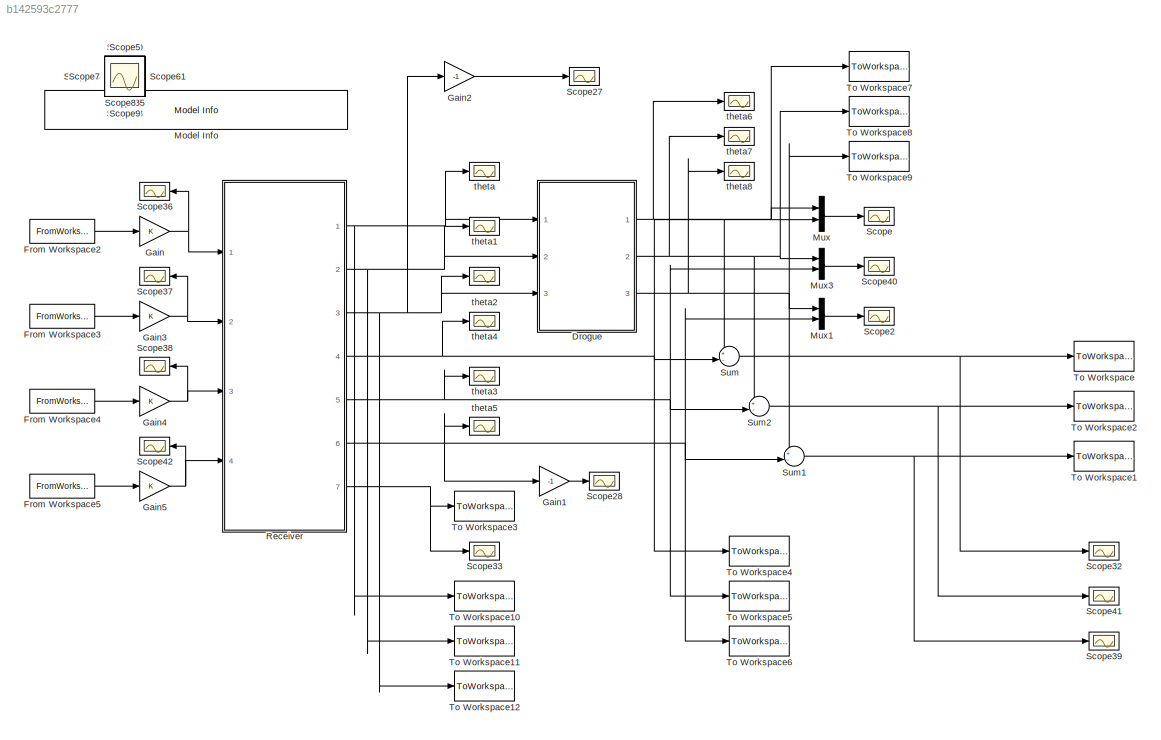
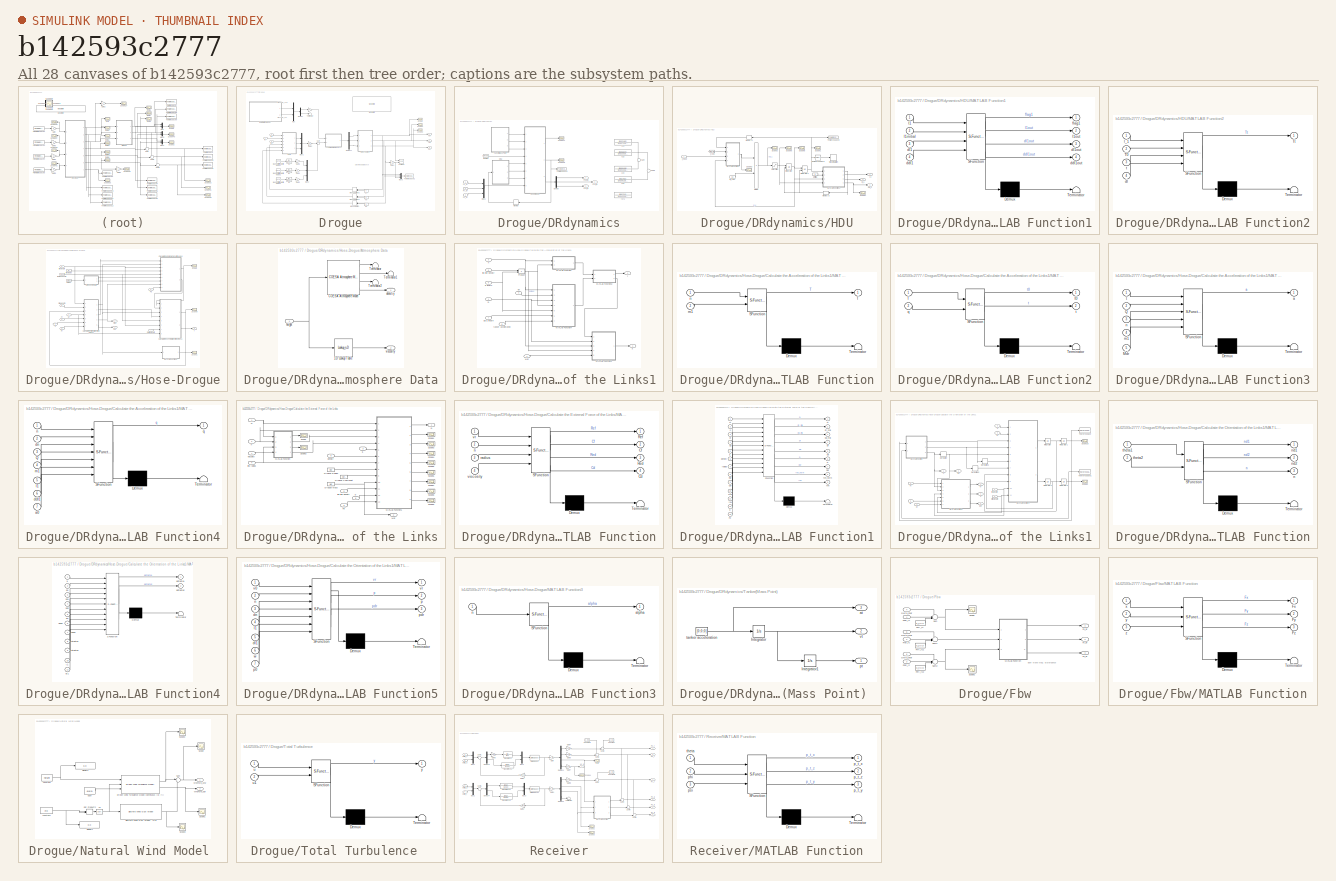
[diagram: thumbnail index - all 28 canvases of the model, root first then tree order]
MODEL slx_b142593c2777
KIND model
CONFIG AbsTol = auto
CONFIG EnableMultiTasking = on
CONFIG FixedStep = Ts
CONFIG MaxStep = auto
CONFIG MinStep = auto
CONFIG RelTol = 1e-5
CONFIG SampleTimeConstraint = Unconstrained
CONFIG Solver = ode4
CONFIG SolverName = ode4
CONFIG StartTime = 0.0
CONFIG StopTime = Tend
BLOCK [SubSystem] Drogue
  Ports = [3, 3]
  RequestExecContextInheritance = off
  Variant = off
BLOCK [Gain] Drogue/ 
  Gain = 0
  OutDataTypeStr = Inherit: Inherit via internal rule
  ParamDataTypeStr = Inherit: Inherit via internal rule
  SaturateOnIntegerOverflow = off
BLOCK [Reference] Drogue/Band-Limited White Noise1  REF=simulink/Sources/Band-Limited
White Noise
  Ports = [0, 1]
  SourceBlock = simulink/Sources/Band-Limited\nWhite Noise
  SourceProductBaseCode = SL
  SourceProductName = Simulink
  SourceType = Band-Limited White Noise.
BLOCK [Reference] Drogue/Band-Limited White Noise2  REF=simulink/Sources/Band-Limited
White Noise
  Ports = [0, 1]
  SourceBlock = simulink/Sources/Band-Limited\nWhite Noise
  SourceProductBaseCode = SL
  SourceProductName = Simulink
  SourceType = Band-Limited White Noise.
BLOCK [Reference] Drogue/Band-Limited White Noise4  REF=simulink/Sources/Band-Limited
White Noise
  Ports = [0, 1]
  SourceBlock = simulink/Sources/Band-Limited\nWhite Noise
  SourceProductBaseCode = SL
  SourceProductName = Simulink
  SourceType = Band-Limited White Noise.
BLOCK [SubSystem] Drogue/DRdynamics
  Ports = [3, 3]
  RequestExecContextInheritance = off
  Variant = off
BLOCK [Demux] Drogue/DRdynamics/Demux
  DisplayOption = bar
  Outputs = 3
  Ports = [1, 3]
BLOCK [Inport] Drogue/DRdynamics/Fx_dr
  IconDisplay = Port number
BLOCK [Inport] Drogue/DRdynamics/Fy_dr
  IconDisplay = Port number
  Port = 2
BLOCK [Inport] Drogue/DRdynamics/Fz_dr
  IconDisplay = Port number
  Port = 3
BLOCK [SubSystem] Drogue/DRdynamics/HDU
  Ports = [1, 3]
  RequestExecContextInheritance = off
  Variant = off
BLOCK [Reference] Drogue/DRdynamics/HDU/Compare To Zero  REF=simulink/Logic and Bit
Operations/Compare
To Zero
  Commented = on
  Ports = [1, 1]
  SourceBlock = simulink/Logic and Bit\nOperations/Compare\nTo Zero
  SourceProductBaseCode = SL
  SourceProductName = Simulink
  SourceType = Compare To Zero
BLOCK [Product] Drogue/DRdynamics/HDU/Divide
  InputSameDT = off
  Inputs = */
  OutDataTypeStr = Inherit: Inherit via internal rule
  Ports = [2, 1]
  RndMeth = Floor
  SaturateOnIntegerOverflow = off
BLOCK [Integrator] Drogue/DRdynamics/HDU/Integrator
  ExternalReset = rising
  LowerSaturationLimit = -0.3
  Ports = [2, 1]
  UpperSaturationLimit = 0.3
BLOCK [Integrator] Drogue/DRdynamics/HDU/Integrator1
  ExternalReset = rising
  InitialCondition = l1
  Ports = [2, 1]
BLOCK [SubSystem] Drogue/DRdynamics/HDU/MATLAB Function1
  ErrorFcn = Stateflow.Translate.translate
  PermitHierarchicalResolution = ExplicitOnly
  Ports = [4, 4]
  RequestExecContextInheritance = off
  SFBlockType = MATLAB Function
  TreatAsAtomicUnit = on
  Variant = off
BLOCK [Demux] Drogue/DRdynamics/HDU/MATLAB Function1/ Demux 
  Outputs = 1
  Ports = [1, 1]
BLOCK [S-Function] Drogue/DRdynamics/HDU/MATLAB Function1/ SFunction 
  EnableBusSupport = on
  FunctionName = sf_sfun
  PortCounts = [4 5]
  Ports = [4, 5]
  SFcnIsStateOwnerBlock = off
  SFunctionDeploymentMode = off
  Tag = Stateflow S-Function TILC_AirRef_v2_longlat_n 6
BLOCK [Terminator] Drogue/DRdynamics/HDU/MATLAB Function1/ Terminator 
BLOCK [Inport] Drogue/DRdynamics/HDU/MATLAB Function1/ddl1
  IconDisplay = Port number
  Port = 4
BLOCK [Outport] Drogue/DRdynamics/HDU/MATLAB Function1/ddl1out
  IconDisplay = Port number
  Port = 4
BLOCK [Inport] Drogue/DRdynamics/HDU/MATLAB Function1/dl1
  IconDisplay = Port number
  Port = 3
BLOCK [Outport] Drogue/DRdynamics/HDU/MATLAB Function1/dl1out
  IconDisplay = Port number
  Port = 3
BLOCK [Outport] Drogue/DRdynamics/HDU/MATLAB Function1/flag1
  IconDisplay = Port number
BLOCK [Inport] Drogue/DRdynamics/HDU/MATLAB Function1/l1
  IconDisplay = Port number
BLOCK [Inport] Drogue/DRdynamics/HDU/MATLAB Function1/l1initial
  IconDisplay = Port number
  Port = 2
BLOCK [Outport] Drogue/DRdynamics/HDU/MATLAB Function1/l1out
  IconDisplay = Port number
  Port = 2
BLOCK [SubSystem] Drogue/DRdynamics/HDU/MATLAB Function2
  ErrorFcn = Stateflow.Translate.translate
  PermitHierarchicalResolution = ExplicitOnly
  Ports = [4, 1]
  RequestExecContextInheritance = off
  SFBlockType = MATLAB Function
  TreatAsAtomicUnit = on
  Variant = off
BLOCK [Demux] Drogue/DRdynamics/HDU/MATLAB Function2/ Demux 
  Outputs = 1
  Ports = [1, 1]
BLOCK [S-Function] Drogue/DRdynamics/HDU/MATLAB Function2/ SFunction 
  EnableBusSupport = on
  FunctionName = sf_sfun
  Parameters = k_reel,l1
  PortCounts = [4 2]
  Ports = [4, 2]
  SFcnIsStateOwnerBlock = off
  SFunctionDeploymentMode = off
  Tag = Stateflow S-Function TILC_AirRef_v2_longlat_n 10
BLOCK [Terminator] Drogue/DRdynamics/HDU/MATLAB Function2/ Terminator 
BLOCK [Inport] Drogue/DRdynamics/HDU/MATLAB Function2/T0
  IconDisplay = Port number
  Port = 2
BLOCK [Outport] Drogue/DRdynamics/HDU/MATLAB Function2/Tt
  IconDisplay = Port number
BLOCK [Inport] Drogue/DRdynamics/HDU/MATLAB Function2/dl
  IconDisplay = Port number
  Port = 4
BLOCK [Inport] Drogue/DRdynamics/HDU/MATLAB Function2/l_1
  IconDisplay = Port number
BLOCK [Inport] Drogue/DRdynamics/HDU/MATLAB Function2/t
  IconDisplay = Port number
  Port = 3
BLOCK [Memory] Drogue/DRdynamics/HDU/Memory2
  InitialCondition = l1
BLOCK [Memory] Drogue/DRdynamics/HDU/Memory3
BLOCK [Saturate] Drogue/DRdynamics/HDU/Saturation
  InputPortMap = u0
  LowerLimit = -3
  Ports = [1, 1]
  UpperLimit = 3
BLOCK [Scope] Drogue/DRdynamics/HDU/Scope1
  NumInputPorts = 1
  Ports = [1]
  ScopeSpecificationString = Simulink.scopes.TimeScopeBlockCfg('CurrentConfiguration', extmgr.ConfigurationSet(extmgr.Configuration('Core','General UI',true),extmgr.Configuration('Core','Source UI',true),extmgr.Configuration('Sources','WiredSimulink',true,'DataLoggingVariableName','ScopeData12','DataLoggingSaveFormat','StructureWithTime','DataLoggingDecimation','1','DataLoggingDecimateData',true),extmgr.Configuration('Visuals...<+1714ch>
BLOCK [Scope] Drogue/DRdynamics/HDU/Scope2
  NumInputPorts = 1
  Ports = [1]
  ScopeSpecificationString = Simulink.scopes.TimeScopeBlockCfg('CurrentConfiguration', extmgr.ConfigurationSet(extmgr.Configuration('Core','General UI',true),extmgr.Configuration('Core','Source UI',true),extmgr.Configuration('Sources','WiredSimulink',true,'DataLoggingVariableName','ScopeData13','DataLoggingSaveFormat','StructureWithTime','DataLoggingDecimation','1','DataLoggingDecimateData',true),extmgr.Configuration('Visuals...<+1697ch>
BLOCK [Scope] Drogue/DRdynamics/HDU/Scope3
  NumInputPorts = 1
  Ports = [1]
  ScopeSpecificationString = C++SS(StrPVP('Location','[1, 49, 1921, 1039]'),StrPVP('Open','off'),StrPVP('ZoomMode','xonly'),MxPVP('AxesTitles',53,'struct(''axes1'',''%<SignalLabel>'')'),MxPVP('ScopeGraphics',56,'struct(''FigureColor'',''[0.5 0.5 0.5]'',''AxesColor'',''[0 0 0]'',''AxesTickColor'',''[1 1 1]'',''LineColors'',''[1 1 0;1 0 1;0 1 1;1 0 0;0 1 0;0 0 1]'',''LineStyles'',''-|-|-|-|-|-'',''LineWidths'',''[0.5 0.5 0.5 0....<+365ch>
BLOCK [Scope] Drogue/DRdynamics/HDU/Scope5
  NumInputPorts = 1
  Ports = [1]
  ScopeSpecificationString = C++SS(StrPVP('Location','[5, 48, 1285, 983]'),StrPVP('Open','off'),StrPVP('ZoomMode','yonly'),MxPVP('AxesTitles',53,'struct(''axes1'',''%<SignalLabel>'')'),MxPVP('ScopeGraphics',56,'struct(''FigureColor'',''[0.5 0.5 0.5]'',''AxesColor'',''[0 0 0]'',''AxesTickColor'',''[1 1 1]'',''LineColors'',''[1 1 0;1 0 1;0 1 1;1 0 0;0 1 0;0 0 1]'',''LineStyles'',''-|-|-|-|-|-'',''LineWidths'',''[0.5 0.5 0.5 0.5...<+364ch>
BLOCK [Scope] Drogue/DRdynamics/HDU/Scope7
  NumInputPorts = 1
  Ports = [1]
  ScopeSpecificationString = C++SS(StrPVP('Location','[5, 48, 1285, 983]'),StrPVP('Open','off'),StrPVP('ZoomMode','xonly'),MxPVP('AxesTitles',53,'struct(''axes1'',''%<SignalLabel>'')'),MxPVP('ScopeGraphics',56,'struct(''FigureColor'',''[0.5 0.5 0.5]'',''AxesColor'',''[0 0 0]'',''AxesTickColor'',''[1 1 1]'',''LineColors'',''[1 1 0;1 0 1;0 1 1;1 0 0;0 1 0;0 0 1]'',''LineStyles'',''-|-|-|-|-|-'',''LineWidths'',''[0.5 0.5 0.5 0.5...<+364ch>
BLOCK [Scope] Drogue/DRdynamics/HDU/Scope8
  NumInputPorts = 1
  Ports = [1]
  ScopeSpecificationString = Simulink.scopes.TimeScopeBlockCfg('CurrentConfiguration', extmgr.ConfigurationSet(extmgr.Configuration('Core','General UI',true),extmgr.Configuration('Core','Source UI',true),extmgr.Configuration('Sources','WiredSimulink',true,'DataLoggingVariableName','ScopeData19','DataLoggingSaveFormat','StructureWithTime','DataLoggingDecimation','1','DataLoggingDecimateData',true),extmgr.Configuration('Visuals...<+1670ch>
BLOCK [Stop] Drogue/DRdynamics/HDU/Stop Simulation
  Commented = on
BLOCK [ToWorkspace] Drogue/DRdynamics/HDU/To Workspace3
  MaxDataPoints = inf
  Ports = [1]
  SampleTime = -1
  VariableName = l1_v
BLOCK [Outport] Drogue/DRdynamics/HDU/ddl_1
  IconDisplay = Port number
  Port = 3
BLOCK [Outport] Drogue/DRdynamics/HDU/dl_1
  IconDisplay = Port number
  Port = 2
BLOCK [Constant] Drogue/DRdynamics/HDU/l1 initial1
  Value = l1
BLOCK [Outport] Drogue/DRdynamics/HDU/l_1
  IconDisplay = Port number
BLOCK [Constant] Drogue/DRdynamics/HDU/m_reel
  Value = 68
BLOCK [Inport] Drogue/DRdynamics/HDU/t_hose
  IconDisplay = Port number
BLOCK [Constant] Drogue/DRdynamics/HDU/t_reel
  Value = T_reel_initial
BLOCK [SubSystem] Drogue/DRdynamics/Hose-Drogue
  Ports = [8, 3]
  RequestExecContextInheritance = off
  Variant = off
BLOCK [SubSystem] Drogue/DRdynamics/Hose-Drogue/Atmosphere Data
  Ports = [1, 2]
  RequestExecContextInheritance = off
  Variant = off
BLOCK [Lookup_n-D] Drogue/DRdynamics/Hose-Drogue/Atmosphere Data/1-D Lookup Table
  BreakpointsForDimension1 = [0,1000,2000,3000,4000,5000,6000,7000,8000,9000,10000]
  NumberOfTableDimensions = 1
  Ports = [1, 1]
  RndMeth = Simplest
  Table = [1.789e-05,1.749e-05,1.717e-05,1.684e-05,1.652e-05,1.619e-05,1.586e-05,1.552e-05,1.517e-05,1.482e-05,1.447e-05]
BLOCK [Reference] Drogue/DRdynamics/Hose-Drogue/Atmosphere Data/COESA Atmosphere Model  REF=aerolibatmos2/COESA Atmosphere Model
  Ports = [1, 4]
  SourceBlock = aerolibatmos2/COESA Atmosphere Model
  SourceProductBaseCode = AE
  SourceProductName = Aerospace Blockset
  SourceType = Atmosphere Model
BLOCK [Terminator] Drogue/DRdynamics/Hose-Drogue/Atmosphere Data/Terminator
BLOCK [Terminator] Drogue/DRdynamics/Hose-Drogue/Atmosphere Data/Terminator1
BLOCK [Terminator] Drogue/DRdynamics/Hose-Drogue/Atmosphere Data/Terminator2
BLOCK [Outport] Drogue/DRdynamics/Hose-Drogue/Atmosphere Data/densitiy
  IconDisplay = Port number
BLOCK [Inport] Drogue/DRdynamics/Hose-Drogue/Atmosphere Data/height
  IconDisplay = Port number
BLOCK [Outport] Drogue/DRdynamics/Hose-Drogue/Atmosphere Data/viscosity
  IconDisplay = Port number
  Port = 2
BLOCK [SubSystem] Drogue/DRdynamics/Hose-Drogue/Calculate the Acceleration of the Links1
  Ports = [8, 2]
  RequestExecContextInheritance = off
  Variant = off
BLOCK [Inport] Drogue/DRdynamics/Hose-Drogue/Calculate the Acceleration of the Links1/DD l1 length
  IconDisplay = Port number
  Port = 7
BLOCK [SubSystem] Drogue/DRdynamics/Hose-Drogue/Calculate the Acceleration of the Links1/MATLAB Function
  ErrorFcn = Stateflow.Translate.translate
  PermitHierarchicalResolution = ExplicitOnly
  Ports = [2, 1]
  RequestExecContextInheritance = off
  SFBlockType = MATLAB Function
  TreatAsAtomicUnit = on
  Variant = off
BLOCK [Demux] Drogue/DRdynamics/Hose-Drogue/Calculate the Acceleration of the Links1/MATLAB Function/ Demux 
  Outputs = 1
  Ports = [1, 1]
BLOCK [S-Function] Drogue/DRdynamics/Hose-Drogue/Calculate the Acceleration of the Links1/MATLAB Function/ SFunction 
  EnableBusSupport = on
  FunctionName = sf_sfun
  Parameters = N,m0
  PortCounts = [2 2]
  Ports = [2, 2]
  SFcnIsStateOwnerBlock = off
  SFunctionDeploymentMode = off
  Tag = Stateflow S-Function TILC_AirRef_v2_longlat_n 17
BLOCK [Terminator] Drogue/DRdynamics/Hose-Drogue/Calculate the Acceleration of the Links1/MATLAB Function/ Terminator 
BLOCK [Outport] Drogue/DRdynamics/Hose-Drogue/Calculate the Acceleration of the Links1/MATLAB Function/T
  IconDisplay = Port number
BLOCK [Inport] Drogue/DRdynamics/Hose-Drogue/Calculate the Acceleration of the Links1/MATLAB Function/m1
  IconDisplay = Port number
  Port = 2
BLOCK [Inport] Drogue/DRdynamics/Hose-Drogue/Calculate the Acceleration of the Links1/MATLAB Function/n
  IconDisplay = Port number
BLOCK [SubSystem] Drogue/DRdynamics/Hose-Drogue/Calculate the Acceleration of the Links1/MATLAB Function2
  ErrorFcn = Stateflow.Translate.translate
  PermitHierarchicalResolution = ExplicitOnly
  Ports = [2, 2]
  RequestExecContextInheritance = off
  SFBlockType = MATLAB Function
  TreatAsAtomicUnit = on
  Variant = off
BLOCK [Demux] Drogue/DRdynamics/Hose-Drogue/Calculate the Acceleration of the Links1/MATLAB Function2/ Demux 
  Outputs = 1
  Ports = [1, 1]
BLOCK [S-Function] Drogue/DRdynamics/Hose-Drogue/Calculate the Acceleration of the Links1/MATLAB Function2/ SFunction 
  EnableBusSupport = on
  FunctionName = sf_sfun
  PortCounts = [2 3]
  Ports = [2, 3]
  SFcnIsStateOwnerBlock = off
  SFunctionDeploymentMode = off
  Tag = Stateflow S-Function TILC_AirRef_v2_longlat_n 19
BLOCK [Terminator] Drogue/DRdynamics/Hose-Drogue/Calculate the Acceleration of the Links1/MATLAB Function2/ Terminator 
BLOCK [Inport] Drogue/DRdynamics/Hose-Drogue/Calculate the Acceleration of the Links1/MATLAB Function2/T
  IconDisplay = Port number
BLOCK [Inport] Drogue/DRdynamics/Hose-Drogue/Calculate the Acceleration of the Links1/MATLAB Function2/q
  IconDisplay = Port number
  Port = 2
BLOCK [Outport] Drogue/DRdynamics/Hose-Drogue/Calculate the Acceleration of the Links1/MATLAB Function2/t
  IconDisplay = Port number
  Port = 2
BLOCK [Outport] Drogue/DRdynamics/Hose-Drogue/Calculate the Acceleration of the Links1/MATLAB Function2/t0
  IconDisplay = Port number
BLOCK [SubSystem] Drogue/DRdynamics/Hose-Drogue/Calculate the Acceleration of the Links1/MATLAB Function3
  ErrorFcn = Stateflow.Translate.translate
  PermitHierarchicalResolution = ExplicitOnly
  Ports = [5, 1]
  RequestExecContextInheritance = off
  SFBlockType = MATLAB Function
  TreatAsAtomicUnit = on
  Variant = off
BLOCK [Demux] Drogue/DRdynamics/Hose-Drogue/Calculate the Acceleration of the Links1/MATLAB Function3/ Demux 
  Outputs = 1
  Ports = [1, 1]
BLOCK [S-Function] Drogue/DRdynamics/Hose-Drogue/Calculate the Acceleration of the Links1/MATLAB Function3/ SFunction 
  EnableBusSupport = on
  FunctionName = sf_sfun
  Parameters = N,m0
  PortCounts = [5 2]
  Ports = [5, 2]
  SFcnIsStateOwnerBlock = off
  SFunctionDeploymentMode = off
  Tag = Stateflow S-Function TILC_AirRef_v2_longlat_n 20
BLOCK [Terminator] Drogue/DRdynamics/Hose-Drogue/Calculate the Acceleration of the Links1/MATLAB Function3/ Terminator 
BLOCK [Inport] Drogue/DRdynamics/Hose-Drogue/Calculate the Acceleration of the Links1/MATLAB Function3/Mdr
  IconDisplay = Port number
  Port = 5
BLOCK [Inport] Drogue/DRdynamics/Hose-Drogue/Calculate the Acceleration of the Links1/MATLAB Function3/Q
  IconDisplay = Port number
  Port = 2
BLOCK [Outport] Drogue/DRdynamics/Hose-Drogue/Calculate the Acceleration of the Links1/MATLAB Function3/a
  IconDisplay = Port number
BLOCK [Inport] Drogue/DRdynamics/Hose-Drogue/Calculate the Acceleration of the Links1/MATLAB Function3/m1
  IconDisplay = Port number
  Port = 4
BLOCK [Inport] Drogue/DRdynamics/Hose-Drogue/Calculate the Acceleration of the Links1/MATLAB Function3/n
  IconDisplay = Port number
  Port = 3
BLOCK [Inport] Drogue/DRdynamics/Hose-Drogue/Calculate the Acceleration of the Links1/MATLAB Function3/t
  IconDisplay = Port number
BLOCK [SubSystem] Drogue/DRdynamics/Hose-Drogue/Calculate the Acceleration of the Links1/MATLAB Function4
  ErrorFcn = Stateflow.Translate.translate
  PermitHierarchicalResolution = ExplicitOnly
  Ports = [7, 1]
  RequestExecContextInheritance = off
  SFBlockType = MATLAB Function
  TreatAsAtomicUnit = on
  Variant = off
BLOCK [Demux] Drogue/DRdynamics/Hose-Drogue/Calculate the Acceleration of the Links1/MATLAB Function4/ Demux 
  Outputs = 1
  Ports = [1, 1]
BLOCK [S-Function] Drogue/DRdynamics/Hose-Drogue/Calculate the Acceleration of the Links1/MATLAB Function4/ SFunction 
  EnableBusSupport = on
  FunctionName = sf_sfun
  Parameters = N,l0,m0
  PortCounts = [7 2]
  Ports = [7, 2]
  SFcnIsStateOwnerBlock = off
  SFunctionDeploymentMode = off
  Tag = Stateflow S-Function TILC_AirRef_v2_longlat_n 21
BLOCK [Terminator] Drogue/DRdynamics/Hose-Drogue/Calculate the Acceleration of the Links1/MATLAB Function4/ Terminator 
BLOCK [Inport] Drogue/DRdynamics/Hose-Drogue/Calculate the Acceleration of the Links1/MATLAB Function4/Q
  IconDisplay = Port number
  Port = 3
BLOCK [Inport] Drogue/DRdynamics/Hose-Drogue/Calculate the Acceleration of the Links1/MATLAB Function4/a0
  IconDisplay = Port number
  Port = 7
BLOCK [Inport] Drogue/DRdynamics/Hose-Drogue/Calculate the Acceleration of the Links1/MATLAB Function4/ddl1
  IconDisplay = Port number
  Port = 6
BLOCK [Inport] Drogue/DRdynamics/Hose-Drogue/Calculate the Acceleration of the Links1/MATLAB Function4/dn
  IconDisplay = Port number
  Port = 2
BLOCK [Inport] Drogue/DRdynamics/Hose-Drogue/Calculate the Acceleration of the Links1/MATLAB Function4/l1
  IconDisplay = Port number
  Port = 5
BLOCK [Inport] Drogue/DRdynamics/Hose-Drogue/Calculate the Acceleration of the Links1/MATLAB Function4/m1
  IconDisplay = Port number
  Port = 4
BLOCK [Inport] Drogue/DRdynamics/Hose-Drogue/Calculate the Acceleration of the Links1/MATLAB Function4/n
  IconDisplay = Port number
BLOCK [Outport] Drogue/DRdynamics/Hose-Drogue/Calculate the Acceleration of the Links1/MATLAB Function4/q
  IconDisplay = Port number
BLOCK [Inport] Drogue/DRdynamics/Hose-Drogue/Calculate the Acceleration of the Links1/Mdr
  IconDisplay = Port number
  Port = 2
BLOCK [Product] Drogue/DRdynamics/Hose-Drogue/Calculate the Acceleration of the Links1/Product
  InputSameDT = off
  OutDataTypeStr = Inherit: Inherit via internal rule
  Ports = [2, 1]
  RndMeth = Floor
  SaturateOnIntegerOverflow = off
BLOCK [Inport] Drogue/DRdynamics/Hose-Drogue/Calculate the Acceleration of the Links1/Q
  IconDisplay = Port number
BLOCK [Outport] Drogue/DRdynamics/Hose-Drogue/Calculate the Acceleration of the Links1/a
  IconDisplay = Port number
BLOCK [Inport] Drogue/DRdynamics/Hose-Drogue/Calculate the Acceleration of the Links1/dn
  IconDisplay = Port number
  Port = 4
BLOCK [Inport] Drogue/DRdynamics/Hose-Drogue/Calculate the Acceleration of the Links1/l1 length
  IconDisplay = Port number
  Port = 6
BLOCK [Inport] Drogue/DRdynamics/Hose-Drogue/Calculate the Acceleration of the Links1/link line density
  IconDisplay = Port number
  Port = 5
BLOCK [Inport] Drogue/DRdynamics/Hose-Drogue/Calculate the Acceleration of the Links1/n
  IconDisplay = Port number
  Port = 3
BLOCK [Outport] Drogue/DRdynamics/Hose-Drogue/Calculate the Acceleration of the Links1/t
  IconDisplay = Port number
  Port = 2
BLOCK [Inport] Drogue/DRdynamics/Hose-Drogue/Calculate the Acceleration of the Links1/tanker acceleration 
  IconDisplay = Port number
  Port = 8
BLOCK [SubSystem] Drogue/DRdynamics/Hose-Drogue/Calculate the External Force of the Links
  Ports = [9, 2]
  RequestExecContextInheritance = off
  Variant = off
BLOCK [Constant] Drogue/DRdynamics/Hose-Drogue/Calculate the External Force of the Links/Drogue Coeffecint
  Value = Cdr_
BLOCK [Constant] Drogue/DRdynamics/Hose-Drogue/Calculate the External Force of the Links/Drogue Mass
  Value = Mdr
BLOCK [Constant] Drogue/DRdynamics/Hose-Drogue/Calculate the External Force of the Links/Drogue Radius
  Value = Rdr
BLOCK [Inport] Drogue/DRdynamics/Hose-Drogue/Calculate the External Force of the Links/Fb
  IconDisplay = Port number
  Port = 9
BLOCK [SubSystem] Drogue/DRdynamics/Hose-Drogue/Calculate the External Force of the Links/MATLAB Function
  ErrorFcn = Stateflow.Translate.translate
  PermitHierarchicalResolution = ExplicitOnly
  Ports = [4, 4]
  RequestExecContextInheritance = off
  SFBlockType = MATLAB Function
  TreatAsAtomicUnit = on
  Variant = off
BLOCK [Demux] Drogue/DRdynamics/Hose-Drogue/Calculate the External Force of the Links/MATLAB Function/ Demux 
  Outputs = 1
  Ports = [1, 1]
BLOCK [S-Function] Drogue/DRdynamics/Hose-Drogue/Calculate the External Force of the Links/MATLAB Function/ SFunction 
  EnableBusSupport = on
  FunctionName = sf_sfun
  Parameters = N
  PortCounts = [4 5]
  Ports = [4, 5]
  SFcnIsStateOwnerBlock = off
  SFunctionDeploymentMode = off
  Tag = Stateflow S-Function TILC_AirRef_v2_longlat_n 3
BLOCK [Terminator] Drogue/DRdynamics/Hose-Drogue/Calculate the External Force of the Links/MATLAB Function/ Terminator 
BLOCK [Outport] Drogue/DRdynamics/Hose-Drogue/Calculate the External Force of the Links/MATLAB Function/Cd
  IconDisplay = Port number
  Port = 4
BLOCK [Outport] Drogue/DRdynamics/Hose-Drogue/Calculate the External Force of the Links/MATLAB Function/Cf
  IconDisplay = Port number
  Port = 2
BLOCK [Outport] Drogue/DRdynamics/Hose-Drogue/Calculate the External Force of the Links/MATLAB Function/Red
  IconDisplay = Port number
  Port = 3
BLOCK [Outport] Drogue/DRdynamics/Hose-Drogue/Calculate the External Force of the Links/MATLAB Function/Ref
  IconDisplay = Port number
BLOCK [Inport] Drogue/DRdynamics/Hose-Drogue/Calculate the External Force of the Links/MATLAB Function/n
  IconDisplay = Port number
  Port = 2
BLOCK [Inport] Drogue/DRdynamics/Hose-Drogue/Calculate the External Force of the Links/MATLAB Function/radius
  IconDisplay = Port number
  Port = 3
BLOCK [Inport] Drogue/DRdynamics/Hose-Drogue/Calculate the External Force of the Links/MATLAB Function/viscosity
  IconDisplay = Port number
  Port = 4
BLOCK [Inport] Drogue/DRdynamics/Hose-Drogue/Calculate the External Force of the Links/MATLAB Function/vr
  IconDisplay = Port number
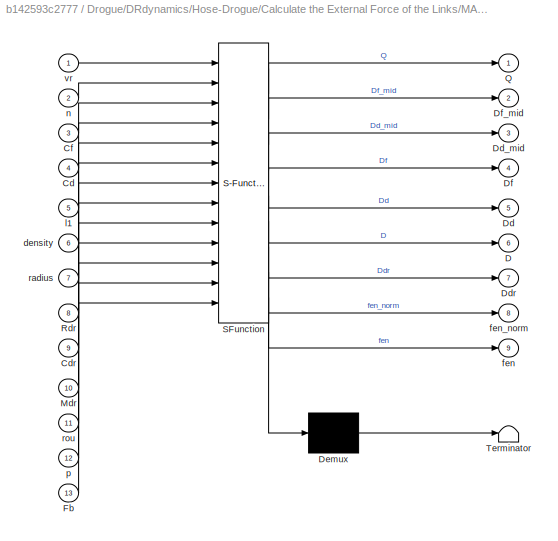
BLOCK [SubSystem] Drogue/DRdynamics/Hose-Drogue/Calculate the External Force of the Links/MATLAB Function1
  ErrorFcn = Stateflow.Translate.translate
  PermitHierarchicalResolution = ExplicitOnly
  Ports = [13, 9]
  RequestExecContextInheritance = off
  SFBlockType = MATLAB Function
  TreatAsAtomicUnit = on
  Variant = off
BLOCK [Demux] Drogue/DRdynamics/Hose-Drogue/Calculate the External Force of the Links/MATLAB Function1/ Demux 
  Outputs = 1
  Ports = [1, 1]
BLOCK [S-Function] Drogue/DRdynamics/Hose-Drogue/Calculate the External Force of the Links/MATLAB Function1/ SFunction 
  EnableBusSupport = on
  FunctionName = sf_sfun
  Parameters = N,l0
  PortCounts = [13 10]
  Ports = [13, 10]
  SFcnIsStateOwnerBlock = off
  SFunctionDeploymentMode = off
  Tag = Stateflow S-Function TILC_AirRef_v2_longlat_n 5
BLOCK [Terminator] Drogue/DRdynamics/Hose-Drogue/Calculate the External Force of the Links/MATLAB Function1/ Terminator 
BLOCK [Inport] Drogue/DRdynamics/Hose-Drogue/Calculate the External Force of the Links/MATLAB Function1/Cd
  IconDisplay = Port number
  Port = 4
BLOCK [Inport] Drogue/DRdynamics/Hose-Drogue/Calculate the External Force of the Links/MATLAB Function1/Cdr
  IconDisplay = Port number
  Port = 9
BLOCK [Inport] Drogue/DRdynamics/Hose-Drogue/Calculate the External Force of the Links/MATLAB Function1/Cf
  IconDisplay = Port number
  Port = 3
BLOCK [Outport] Drogue/DRdynamics/Hose-Drogue/Calculate the External Force of the Links/MATLAB Function1/D
  IconDisplay = Port number
  Port = 6
BLOCK [Outport] Drogue/DRdynamics/Hose-Drogue/Calculate the External Force of the Links/MATLAB Function1/Dd
  IconDisplay = Port number
  Port = 5
BLOCK [Outport] Drogue/DRdynamics/Hose-Drogue/Calculate the External Force of the Links/MATLAB Function1/Dd_mid
  IconDisplay = Port number
  Port = 3
BLOCK [Outport] Drogue/DRdynamics/Hose-Drogue/Calculate the External Force of the Links/MATLAB Function1/Ddr
  IconDisplay = Port number
  Port = 7
BLOCK [Outport] Drogue/DRdynamics/Hose-Drogue/Calculate the External Force of the Links/MATLAB Function1/Df
  IconDisplay = Port number
  Port = 4
BLOCK [Outport] Drogue/DRdynamics/Hose-Drogue/Calculate the External Force of the Links/MATLAB Function1/Df_mid
  IconDisplay = Port number
  Port = 2
BLOCK [Inport] Drogue/DRdynamics/Hose-Drogue/Calculate the External Force of the Links/MATLAB Function1/Fb
  IconDisplay = Port number
  Port = 13
BLOCK [Inport] Drogue/DRdynamics/Hose-Drogue/Calculate the External Force of the Links/MATLAB Function1/Mdr
  IconDisplay = Port number
  Port = 10
BLOCK [Outport] Drogue/DRdynamics/Hose-Drogue/Calculate the External Force of the Links/MATLAB Function1/Q
  IconDisplay = Port number
BLOCK [Inport] Drogue/DRdynamics/Hose-Drogue/Calculate the External Force of the Links/MATLAB Function1/Rdr
  IconDisplay = Port number
  Port = 8
BLOCK [Inport] Drogue/DRdynamics/Hose-Drogue/Calculate the External Force of the Links/MATLAB Function1/density
  IconDisplay = Port number
  Port = 6
BLOCK [Outport] Drogue/DRdynamics/Hose-Drogue/Calculate the External Force of the Links/MATLAB Function1/fen
  IconDisplay = Port number
  Port = 9
BLOCK [Outport] Drogue/DRdynamics/Hose-Drogue/Calculate the External Force of the Links/MATLAB Function1/fen_norm
  IconDisplay = Port number
  Port = 8
BLOCK [Inport] Drogue/DRdynamics/Hose-Drogue/Calculate the External Force of the Links/MATLAB Function1/l1
  IconDisplay = Port number
  Port = 5
BLOCK [Inport] Drogue/DRdynamics/Hose-Drogue/Calculate the External Force of the Links/MATLAB Function1/n
  IconDisplay = Port number
  Port = 2
BLOCK [Inport] Drogue/DRdynamics/Hose-Drogue/Calculate the External Force of the Links/MATLAB Function1/p
  IconDisplay = Port number
  Port = 12
BLOCK [Inport] Drogue/DRdynamics/Hose-Drogue/Calculate the External Force of the Links/MATLAB Function1/radius
  IconDisplay = Port number
  Port = 7
BLOCK [Inport] Drogue/DRdynamics/Hose-Drogue/Calculate the External Force of the Links/MATLAB Function1/rou
  IconDisplay = Port number
  Port = 11
BLOCK [Inport] Drogue/DRdynamics/Hose-Drogue/Calculate the External Force of the Links/MATLAB Function1/vr
  IconDisplay = Port number
BLOCK [Outport] Drogue/DRdynamics/Hose-Drogue/Calculate the External Force of the Links/Mdr
  IconDisplay = Port number
  Port = 2
BLOCK [Outport] Drogue/DRdynamics/Hose-Drogue/Calculate the External Force of the Links/Q
  IconDisplay = Port number
BLOCK [Scope] Drogue/DRdynamics/Hose-Drogue/Calculate the External Force of the Links/Scope
  NumInputPorts = 1
  Ports = [1]
  ScopeSpecificationString = C++SS(StrPVP('Location','[5, 48, 1285, 983]'),StrPVP('Open','off'),StrPVP('ZoomMode','yonly'),MxPVP('AxesTitles',53,'struct(''axes1'',''%<SignalLabel>'')'),MxPVP('ScopeGraphics',56,'struct(''FigureColor'',''[0.5 0.5 0.5]'',''AxesColor'',''[0 0 0]'',''AxesTickColor'',''[1 1 1]'',''LineColors'',''[1 1 0;1 0 1;0 1 1;1 0 0;0 1 0;0 0 1]'',''LineStyles'',''-|-|-|-|-|-'',''LineWidths'',''[0.5 0.5 0.5 0.5...<+296ch>  <repeated x6 — deduplicated; at blocks: Scope, Scope2, Scope4, Scope5, Scope6, Scope7>
BLOCK [Scope] Drogue/DRdynamics/Hose-Drogue/Calculate the External Force of the Links/Scope1
  NumInputPorts = 1
  Ports = [1]
  ScopeSpecificationString = C++SS(StrPVP('Location','[5, 48, 1285, 983]'),StrPVP('Open','off'),StrPVP('ZoomMode','yonly'),MxPVP('AxesTitles',53,'struct(''axes1'',''%<SignalLabel>'')'),MxPVP('ScopeGraphics',56,'struct(''FigureColor'',''[0.5 0.5 0.5]'',''AxesColor'',''[0 0 0]'',''AxesTickColor'',''[1 1 1]'',''LineColors'',''[1 1 0;1 0 1;0 1 1;1 0 0;0 1 0;0 0 1]'',''LineStyles'',''-|-|-|-|-|-'',''LineWidths'',''[0.5 0.5 0.5 0.5...<+297ch>  <repeated x4 — deduplicated; at blocks: Scope1, Scope3, Scope9, Scope8>
BLOCK [Scope] Drogue/DRdynamics/Hose-Drogue/Calculate the External Force of the Links/Scope2
  NumInputPorts = 1
  Ports = [1]
BLOCK [Scope] Drogue/DRdynamics/Hose-Drogue/Calculate the External Force of the Links/Scope3
  NumInputPorts = 1
  Ports = [1]
BLOCK [Scope] Drogue/DRdynamics/Hose-Drogue/Calculate the External Force of the Links/Scope4
  NumInputPorts = 1
  Ports = [1]
BLOCK [Scope] Drogue/DRdynamics/Hose-Drogue/Calculate the External Force of the Links/Scope5
  NumInputPorts = 1
  Ports = [1]
BLOCK [Scope] Drogue/DRdynamics/Hose-Drogue/Calculate the External Force of the Links/Scope6
  NumInputPorts = 1
  Ports = [1]
BLOCK [Scope] Drogue/DRdynamics/Hose-Drogue/Calculate the External Force of the Links/Scope7
  NumInputPorts = 1
  Ports = [1]
BLOCK [Scope] Drogue/DRdynamics/Hose-Drogue/Calculate the External Force of the Links/Scope8
  NumInputPorts = 1
  Ports = [1]
  ScopeSpecificationString = C++SS(StrPVP('Location','[5, 48, 1285, 983]'),StrPVP('Open','off'),StrPVP('ZoomMode','xonly'),MxPVP('AxesTitles',53,'struct(''axes1'',''%<SignalLabel>'')'),MxPVP('ScopeGraphics',56,'struct(''FigureColor'',''[0.5 0.5 0.5]'',''AxesColor'',''[0 0 0]'',''AxesTickColor'',''[1 1 1]'',''LineColors'',''[1 1 0;1 0 1;0 1 1;1 0 0;0 1 0;0 0 1]'',''LineStyles'',''-|-|-|-|-|-'',''LineWidths'',''[0.5 0.5 0.5 0.5...<+298ch>  <repeated x4 — deduplicated; at blocks: Scope8, Scope1, Scope10>
BLOCK [Scope] Drogue/DRdynamics/Hose-Drogue/Calculate the External Force of the Links/Scope9
  NumInputPorts = 1
  Ports = [1]
BLOCK [Inport] Drogue/DRdynamics/Hose-Drogue/Calculate the External Force of the Links/density
  IconDisplay = Port number
  Port = 6
BLOCK [Inport] Drogue/DRdynamics/Hose-Drogue/Calculate the External Force of the Links/l1
  IconDisplay = Port number
  Port = 3
BLOCK [Inport] Drogue/DRdynamics/Hose-Drogue/Calculate the External Force of the Links/link line density
  IconDisplay = Port number
  Port = 5
BLOCK [Inport] Drogue/DRdynamics/Hose-Drogue/Calculate the External Force of the Links/link radius
  IconDisplay = Port number
  Port = 4
BLOCK [Inport] Drogue/DRdynamics/Hose-Drogue/Calculate the External Force of the Links/n
  IconDisplay = Port number
  Port = 2
BLOCK [Inport] Drogue/DRdynamics/Hose-Drogue/Calculate the External Force of the Links/p
  IconDisplay = Port number
  Port = 8
BLOCK [Inport] Drogue/DRdynamics/Hose-Drogue/Calculate the External Force of the Links/viscosity
  IconDisplay = Port number
  Port = 7
BLOCK [Inport] Drogue/DRdynamics/Hose-Drogue/Calculate the External Force of the Links/vr
  IconDisplay = Port number
BLOCK [SubSystem] Drogue/DRdynamics/Hose-Drogue/Calculate the Orientation of the Links1
  Ports = [7, 5]
  RequestExecContextInheritance = off
  Variant = off
BLOCK [Inport] Drogue/DRdynamics/Hose-Drogue/Calculate the Orientation of the Links1/D link length
  IconDisplay = Port number
  Port = 2
BLOCK [Derivative] Drogue/DRdynamics/Hose-Drogue/Calculate the Orientation of the Links1/Derivative
BLOCK [Derivative] Drogue/DRdynamics/Hose-Drogue/Calculate the Orientation of the Links1/Derivative1
BLOCK [Derivative] Drogue/DRdynamics/Hose-Drogue/Calculate the Orientation of the Links1/Derivative2
BLOCK [Integrator] Drogue/DRdynamics/Hose-Drogue/Calculate the Orientation of the Links1/Integrator
  InitialCondition = dtheta10
  Ports = [1, 1]
BLOCK [Integrator] Drogue/DRdynamics/Hose-Drogue/Calculate the Orientation of the Links1/Integrator1
  InitialCondition = theta10
  Ports = [1, 1]
BLOCK [Integrator] Drogue/DRdynamics/Hose-Drogue/Calculate the Orientation of the Links1/Integrator2
  InitialCondition = dtheta20
  Ports = [1, 1]
BLOCK [Integrator] Drogue/DRdynamics/Hose-Drogue/Calculate the Orientation of the Links1/Integrator3
  InitialCondition = theta20
  Ports = [1, 1]
BLOCK [SubSystem] Drogue/DRdynamics/Hose-Drogue/Calculate the Orientation of the Links1/MATLAB Function
  ErrorFcn = Stateflow.Translate.translate
  PermitHierarchicalResolution = ExplicitOnly
  Ports = [2, 3]
  RequestExecContextInheritance = off
  SFBlockType = MATLAB Function
  TreatAsAtomicUnit = on
  Variant = off
BLOCK [Demux] Drogue/DRdynamics/Hose-Drogue/Calculate the Orientation of the Links1/MATLAB Function/ Demux 
  Outputs = 1
  Ports = [1, 1]
BLOCK [S-Function] Drogue/DRdynamics/Hose-Drogue/Calculate the Orientation of the Links1/MATLAB Function/ SFunction 
  EnableBusSupport = on
  FunctionName = sf_sfun
  Parameters = N
  PortCounts = [2 4]
  Ports = [2, 4]
  SFcnIsStateOwnerBlock = off
  SFunctionDeploymentMode = off
  Tag = Stateflow S-Function TILC_AirRef_v2_longlat_n 18
BLOCK [Terminator] Drogue/DRdynamics/Hose-Drogue/Calculate the Orientation of the Links1/MATLAB Function/ Terminator 
BLOCK [Outport] Drogue/DRdynamics/Hose-Drogue/Calculate the Orientation of the Links1/MATLAB Function/n
  IconDisplay = Port number
  Port = 3
BLOCK [Outport] Drogue/DRdynamics/Hose-Drogue/Calculate the Orientation of the Links1/MATLAB Function/nd1
  IconDisplay = Port number
BLOCK [Outport] Drogue/DRdynamics/Hose-Drogue/Calculate the Orientation of the Links1/MATLAB Function/nd2
  IconDisplay = Port number
  Port = 2
BLOCK [Inport] Drogue/DRdynamics/Hose-Drogue/Calculate the Orientation of the Links1/MATLAB Function/theta1
  IconDisplay = Port number
BLOCK [Inport] Drogue/DRdynamics/Hose-Drogue/Calculate the Orientation of the Links1/MATLAB Function/theta2
  IconDisplay = Port number
  Port = 2
BLOCK [SubSystem] Drogue/DRdynamics/Hose-Drogue/Calculate the Orientation of the Links1/MATLAB Function4
  ErrorFcn = Stateflow.Translate.translate
  PermitHierarchicalResolution = ExplicitOnly
  Ports = [11, 2]
  RequestExecContextInheritance = off
  SFBlockType = MATLAB Function
  TreatAsAtomicUnit = on
  Variant = off
BLOCK [Demux] Drogue/DRdynamics/Hose-Drogue/Calculate the Orientation of the Links1/MATLAB Function4/ Demux 
  Outputs = 1
  Ports = [1, 1]
BLOCK [S-Function] Drogue/DRdynamics/Hose-Drogue/Calculate the Orientation of the Links1/MATLAB Function4/ SFunction 
  EnableBusSupport = on
  FunctionName = sf_sfun
  Parameters = N,l0
  PortCounts = [11 3]
  Ports = [11, 3]
  SFcnIsStateOwnerBlock = off
  SFunctionDeploymentMode = off
  Tag = Stateflow S-Function TILC_AirRef_v2_longlat_n 22
BLOCK [Terminator] Drogue/DRdynamics/Hose-Drogue/Calculate the Orientation of the Links1/MATLAB Function4/ Terminator 
BLOCK [Inport] Drogue/DRdynamics/Hose-Drogue/Calculate the Orientation of the Links1/MATLAB Function4/a
  IconDisplay = Port number
BLOCK [Inport] Drogue/DRdynamics/Hose-Drogue/Calculate the Orientation of the Links1/MATLAB Function4/a0
  IconDisplay = Port number
  Port = 2
BLOCK [Outport] Drogue/DRdynamics/Hose-Drogue/Calculate the Orientation of the Links1/MATLAB Function4/ddtheta1
  IconDisplay = Port number
BLOCK [Outport] Drogue/DRdynamics/Hose-Drogue/Calculate the Orientation of the Links1/MATLAB Function4/ddtheta2
  IconDisplay = Port number
  Port = 2
BLOCK [Inport] Drogue/DRdynamics/Hose-Drogue/Calculate the Orientation of the Links1/MATLAB Function4/dl1
  IconDisplay = Port number
  Port = 11
BLOCK [Inport] Drogue/DRdynamics/Hose-Drogue/Calculate the Orientation of the Links1/MATLAB Function4/dn
  IconDisplay = Port number
  Port = 5
BLOCK [Inport] Drogue/DRdynamics/Hose-Drogue/Calculate the Orientation of the Links1/MATLAB Function4/dnd1
  IconDisplay = Port number
  Port = 6
BLOCK [Inport] Drogue/DRdynamics/Hose-Drogue/Calculate the Orientation of the Links1/MATLAB Function4/dnd2
  IconDisplay = Port number
  Port = 7
BLOCK [Inport] Drogue/DRdynamics/Hose-Drogue/Calculate the Orientation of the Links1/MATLAB Function4/dtheta1
  IconDisplay = Port number
  Port = 8
BLOCK [Inport] Drogue/DRdynamics/Hose-Drogue/Calculate the Orientation of the Links1/MATLAB Function4/dtheta2
  IconDisplay = Port number
  Port = 9
BLOCK [Inport] Drogue/DRdynamics/Hose-Drogue/Calculate the Orientation of the Links1/MATLAB Function4/l1
  IconDisplay = Port number
  Port = 10
BLOCK [Inport] Drogue/DRdynamics/Hose-Drogue/Calculate the Orientation of the Links1/MATLAB Function4/nd1
  IconDisplay = Port number
  Port = 3
BLOCK [Inport] Drogue/DRdynamics/Hose-Drogue/Calculate the Orientation of the Links1/MATLAB Function4/nd2
  IconDisplay = Port number
  Port = 4
BLOCK [SubSystem] Drogue/DRdynamics/Hose-Drogue/Calculate the Orientation of the Links1/MATLAB Function5
  ErrorFcn = Stateflow.Translate.translate
  PermitHierarchicalResolution = ExplicitOnly
  Ports = [7, 3]
  RequestExecContextInheritance = off
  SFBlockType = MATLAB Function
  TreatAsAtomicUnit = on
  Variant = off
BLOCK [Demux] Drogue/DRdynamics/Hose-Drogue/Calculate the Orientation of the Links1/MATLAB Function5/ Demux 
  Outputs = 1
  Ports = [1, 1]
BLOCK [S-Function] Drogue/DRdynamics/Hose-Drogue/Calculate the Orientation of the Links1/MATLAB Function5/ SFunction 
  EnableBusSupport = on
  FunctionName = sf_sfun
  Parameters = N,l0
  PortCounts = [7 4]
  Ports = [7, 4]
  SFcnIsStateOwnerBlock = off
  SFunctionDeploymentMode = off
  Tag = Stateflow S-Function TILC_AirRef_v2_longlat_n 23
BLOCK [Terminator] Drogue/DRdynamics/Hose-Drogue/Calculate the Orientation of the Links1/MATLAB Function5/ Terminator 
BLOCK [Inport] Drogue/DRdynamics/Hose-Drogue/Calculate the Orientation of the Links1/MATLAB Function5/dl1
  IconDisplay = Port number
  Port = 5
BLOCK [Inport] Drogue/DRdynamics/Hose-Drogue/Calculate the Orientation of the Links1/MATLAB Function5/dn
  IconDisplay = Port number
  Port = 3
BLOCK [Inport] Drogue/DRdynamics/Hose-Drogue/Calculate the Orientation of the Links1/MATLAB Function5/l1
  IconDisplay = Port number
  Port = 4
BLOCK [Inport] Drogue/DRdynamics/Hose-Drogue/Calculate the Orientation of the Links1/MATLAB Function5/n
  IconDisplay = Port number
  Port = 2
BLOCK [Outport] Drogue/DRdynamics/Hose-Drogue/Calculate the Orientation of the Links1/MATLAB Function5/p
  IconDisplay = Port number
  Port = 2
BLOCK [Inport] Drogue/DRdynamics/Hose-Drogue/Calculate the Orientation of the Links1/MATLAB Function5/p0
  IconDisplay = Port number
  Port = 7
BLOCK [Outport] Drogue/DRdynamics/Hose-Drogue/Calculate the Orientation of the Links1/MATLAB Function5/pdr
  IconDisplay = Port number
  Port = 3
BLOCK [Inport] Drogue/DRdynamics/Hose-Drogue/Calculate the Orientation of the Links1/MATLAB Function5/v0
  IconDisplay = Port number
BLOCK [Outport] Drogue/DRdynamics/Hose-Drogue/Calculate the Orientation of the Links1/MATLAB Function5/vr
  IconDisplay = Port number
BLOCK [Inport] Drogue/DRdynamics/Hose-Drogue/Calculate the Orientation of the Links1/MATLAB Function5/w
  IconDisplay = Port number
  Port = 6
BLOCK [Scope] Drogue/DRdynamics/Hose-Drogue/Calculate the Orientation of the Links1/Scope1
  NumInputPorts = 1
  Ports = [1]
BLOCK [Scope] Drogue/DRdynamics/Hose-Drogue/Calculate the Orientation of the Links1/Scope10
  NumInputPorts = 1
  Ports = [1]
BLOCK [ToWorkspace] Drogue/DRdynamics/Hose-Drogue/Calculate the Orientation of the Links1/To Workspace
  FixptAsFi = on
  MaxDataPoints = inf
  Ports = [1]
  SampleTime = -1
  Save2DSignal = 2-D array (concatenate along first dimension)
  VariableName = theta1
BLOCK [ToWorkspace] Drogue/DRdynamics/Hose-Drogue/Calculate the Orientation of the Links1/To Workspace1
  FixptAsFi = on
  MaxDataPoints = inf
  Ports = [1]
  SampleTime = -1
  Save2DSignal = 2-D array (concatenate along first dimension)
  VariableName = theta2
BLOCK [Inport] Drogue/DRdynamics/Hose-Drogue/Calculate the Orientation of the Links1/a
  IconDisplay = Port number
  Port = 3
BLOCK [Inport] Drogue/DRdynamics/Hose-Drogue/Calculate the Orientation of the Links1/at
  IconDisplay = Port number
  Port = 4
BLOCK [Outport] Drogue/DRdynamics/Hose-Drogue/Calculate the Orientation of the Links1/dn
  IconDisplay = Port number
  Port = 2
BLOCK [Inport] Drogue/DRdynamics/Hose-Drogue/Calculate the Orientation of the Links1/link length
  IconDisplay = Port number
BLOCK [Outport] Drogue/DRdynamics/Hose-Drogue/Calculate the Orientation of the Links1/n
  IconDisplay = Port number
BLOCK [Outport] Drogue/DRdynamics/Hose-Drogue/Calculate the Orientation of the Links1/p
  IconDisplay = Port number
  Port = 4
BLOCK [Outport] Drogue/DRdynamics/Hose-Drogue/Calculate the Orientation of the Links1/pdr
  IconDisplay = Port number
  Port = 5
BLOCK [Inport] Drogue/DRdynamics/Hose-Drogue/Calculate the Orientation of the Links1/pt
  IconDisplay = Port number
  Port = 7
BLOCK [Outport] Drogue/DRdynamics/Hose-Drogue/Calculate the Orientation of the Links1/vr
  IconDisplay = Port number
  Port = 3
BLOCK [Inport] Drogue/DRdynamics/Hose-Drogue/Calculate the Orientation of the Links1/vt
  IconDisplay = Port number
  Port = 5
BLOCK [Inport] Drogue/DRdynamics/Hose-Drogue/Calculate the Orientation of the Links1/w
  IconDisplay = Port number
  Port = 6
BLOCK [Inport] Drogue/DRdynamics/Hose-Drogue/D link length
  IconDisplay = Port number
  Port = 6
BLOCK [Inport] Drogue/DRdynamics/Hose-Drogue/DD link length
  IconDisplay = Port number
  Port = 7
BLOCK [Inport] Drogue/DRdynamics/Hose-Drogue/Fb
  IconDisplay = Port number
  Port = 8
BLOCK [Constant] Drogue/DRdynamics/Hose-Drogue/Height
  Value = height
BLOCK [SubSystem] Drogue/DRdynamics/Hose-Drogue/MATLAB Function3
  ErrorFcn = Stateflow.Translate.translate
  PermitHierarchicalResolution = ExplicitOnly
  Ports = [1, 1]
  RequestExecContextInheritance = off
  SFBlockType = MATLAB Function
  TreatAsAtomicUnit = on
  Variant = off
BLOCK [Demux] Drogue/DRdynamics/Hose-Drogue/MATLAB Function3/ Demux 
  Outputs = 1
  Ports = [1, 1]
BLOCK [S-Function] Drogue/DRdynamics/Hose-Drogue/MATLAB Function3/ SFunction 
  EnableBusSupport = on
  FunctionName = sf_sfun
  Parameters = N
  PortCounts = [1 2]
  Ports = [1, 2]
  SFcnIsStateOwnerBlock = off
  SFunctionDeploymentMode = off
  Tag = Stateflow S-Function TILC_AirRef_v2_longlat_n 13
BLOCK [Terminator] Drogue/DRdynamics/Hose-Drogue/MATLAB Function3/ Terminator 
BLOCK [Outport] Drogue/DRdynamics/Hose-Drogue/MATLAB Function3/alpha
  IconDisplay = Port number
BLOCK [Inport] Drogue/DRdynamics/Hose-Drogue/MATLAB Function3/n
  IconDisplay = Port number
BLOCK [Scope] Drogue/DRdynamics/Hose-Drogue/Scope
  NumInputPorts = 1
  Ports = [1]
  ScopeSpecificationString = C++SS(StrPVP('Location','[6, 56, 1286, 991]'),StrPVP('Open','off'),StrPVP('ZoomMode','yonly'),MxPVP('AxesTitles',53,'struct(''axes1'',''%<SignalLabel>'')'),MxPVP('ScopeGraphics',56,'struct(''FigureColor'',''[0.5 0.5 0.5]'',''AxesColor'',''[0 0 0]'',''AxesTickColor'',''[1 1 1]'',''LineColors'',''[1 1 0;1 0 1;0 1 1;1 0 0;0 1 0;0 0 1]'',''LineStyles'',''-|-|-|-|-|-'',''LineWidths'',''[0.5 0.5 0.5 0.5...<+265ch>
BLOCK [Scope] Drogue/DRdynamics/Hose-Drogue/Scope1
  NumInputPorts = 1
  Ports = [1]
BLOCK [Scope] Drogue/DRdynamics/Hose-Drogue/Scope8
  NumInputPorts = 1
  Ports = [1]
BLOCK [Inport] Drogue/DRdynamics/Hose-Drogue/at
  IconDisplay = Port number
  Port = 3
BLOCK [Inport] Drogue/DRdynamics/Hose-Drogue/link length
  IconDisplay = Port number
  Port = 5
BLOCK [Constant] Drogue/DRdynamics/Hose-Drogue/link line density
  Value = l_density
BLOCK [Constant] Drogue/DRdynamics/Hose-Drogue/link radius
  Value = Rl
BLOCK [Outport] Drogue/DRdynamics/Hose-Drogue/p link
  IconDisplay = Port number
BLOCK [Outport] Drogue/DRdynamics/Hose-Drogue/pdr
  IconDisplay = Port number
  Port = 3
BLOCK [Inport] Drogue/DRdynamics/Hose-Drogue/pt
  IconDisplay = Port number
BLOCK [Outport] Drogue/DRdynamics/Hose-Drogue/t
  IconDisplay = Port number
  Port = 2
BLOCK [Inport] Drogue/DRdynamics/Hose-Drogue/vt
  IconDisplay = Port number
  Port = 2
BLOCK [Inport] Drogue/DRdynamics/Hose-Drogue/w
  IconDisplay = Port number
  Port = 4
BLOCK [Memory] Drogue/DRdynamics/Memory
  InitialCondition = T_reel_initial
BLOCK [Mux] Drogue/DRdynamics/Mux1
  DisplayOption = bar
  Inputs = 3
  Ports = [3, 1]
BLOCK [Outport] Drogue/DRdynamics/Pxdr_tk
  IconDisplay = Port number
BLOCK [Outport] Drogue/DRdynamics/Pydr_tk
  IconDisplay = Port number
  Port = 2
BLOCK [Outport] Drogue/DRdynamics/Pzdr_tk
  IconDisplay = Port number
  Port = 3
BLOCK [Scope] Drogue/DRdynamics/Scope11
  NumInputPorts = 1
  Ports = [1]
  ScopeSpecificationString = C++SS(StrPVP('Location','[5, 48, 1285, 983]'),StrPVP('Open','off'),StrPVP('ZoomMode','yonly'),MxPVP('AxesTitles',53,'struct(''axes1'',''%<SignalLabel>'')'),MxPVP('ScopeGraphics',56,'struct(''FigureColor'',''[0.5 0.5 0.5]'',''AxesColor'',''[0 0 0]'',''AxesTickColor'',''[1 1 1]'',''LineColors'',''[1 1 0;1 0 1;0 1 1;1 0 0;0 1 0;0 0 1]'',''LineStyles'',''-|-|-|-|-|-'',''LineWidths'',''[0.5 0.5 0.5 0.5...<+397ch>
BLOCK [Scope] Drogue/DRdynamics/Scope38
  NumInputPorts = 1
  Ports = [1]
  ScopeSpecificationString = C++SS(StrPVP('Location','[5, 49, 1925, 1039]'),StrPVP('Open','off'),StrPVP('ZoomMode','yonly'),MxPVP('AxesTitles',53,'struct(''axes1'',''%<SignalLabel>'')'),MxPVP('ScopeGraphics',56,'struct(''FigureColor'',''[0.5 0.5 0.5]'',''AxesColor'',''[0 0 0]'',''AxesTickColor'',''[1 1 1]'',''LineColors'',''[1 1 0;1 0 1;0 1 1;1 0 0;0 1 0;0 0 1]'',''LineStyles'',''-|-|-|-|-|-'',''LineWidths'',''[0.5 0.5 0.5 0....<+398ch>
BLOCK [Sum] Drogue/DRdynamics/Sum
  Commented = on
  IconShape = round
  InputSameDT = off
  Inputs = +|+
  OutDataTypeStr = Inherit: Inherit via internal rule
  Ports = [2, 1]
  SaturateOnIntegerOverflow = off
BLOCK [Sum] Drogue/DRdynamics/Sum1
  Commented = on
  IconShape = round
  InputSameDT = off
  Inputs = +|+
  OutDataTypeStr = Inherit: Inherit via internal rule
  Ports = [2, 1]
  SaturateOnIntegerOverflow = off
BLOCK [SubSystem] Drogue/DRdynamics/Tanker(Mass Point) 
  Ports = [0, 3]
  RequestExecContextInheritance = off
  Variant = off
BLOCK [Integrator] Drogue/DRdynamics/Tanker(Mass Point) /Integrator
  InitialCondition = vt0
  Ports = [1, 1]
BLOCK [Integrator] Drogue/DRdynamics/Tanker(Mass Point) /Integrator1
  InitialCondition = [0;0;0]
  Ports = [1, 1]
BLOCK [Outport] Drogue/DRdynamics/Tanker(Mass Point) /at
  IconDisplay = Port number
  Port = 3
BLOCK [Outport] Drogue/DRdynamics/Tanker(Mass Point) /pt
  IconDisplay = Port number
BLOCK [Constant] Drogue/DRdynamics/Tanker(Mass Point) /tanker acceleration
  Value = [0;0;0]
BLOCK [Outport] Drogue/DRdynamics/Tanker(Mass Point) /vt
  IconDisplay = Port number
  Port = 2
BLOCK [ToWorkspace] Drogue/DRdynamics/To Workspace3
  MaxDataPoints = inf
  Ports = [1]
  SampleTime = -1
  VariableName = T_hose
BLOCK [Constant] Drogue/DRdynamics/length2
  Value = zeros(3,N)
BLOCK [TransferFcn] Drogue/DRdynamics/x2x
  Commented = on
  Denominator = [1 0.3071 2.682]
  Numerator = [0.002185]
BLOCK [TransferFcn] Drogue/DRdynamics/x2z
  Commented = on
  Denominator = [1 0.3223 2.687]
  Numerator = [0.005824]
BLOCK [TransferFcn] Drogue/DRdynamics/y2y1
  Commented = on
  Denominator = [1 0.2422 2.081]
  Numerator = [0.01712]
BLOCK [TransferFcn] Drogue/DRdynamics/z2x
  Commented = on
  Denominator = [1 0.3013 2.689]
  Numerator = [0.006169]
BLOCK [TransferFcn] Drogue/DRdynamics/z2z
  Commented = on
  Denominator = [1 0.3391 2.687]
  Numerator = [0.01782]
BLOCK [Demux] Drogue/Demux
  DisplayOption = bar
  Outputs = 2
  Ports = [1, 2]
BLOCK [Demux] Drogue/Demux1
  DisplayOption = bar
  Outputs = 3
  Ports = [1, 3]
BLOCK [SubSystem] Drogue/Fbw
  Ports = [6, 3]
  RequestExecContextInheritance = off
  Variant = off
BLOCK [Inport] Drogue/Fbw/Delta_Pxdr
  IconDisplay = Port number
  Port = 4
BLOCK [Inport] Drogue/Fbw/Delta_Pydr
  IconDisplay = Port number
  Port = 5
BLOCK [Inport] Drogue/Fbw/Delta_Pzdr
  IconDisplay = Port number
  Port = 6
BLOCK [Outport] Drogue/Fbw/Fx_dr
  IconDisplay = Port number
BLOCK [Outport] Drogue/Fbw/Fy_dr
  IconDisplay = Port number
  Port = 2
BLOCK [Outport] Drogue/Fbw/Fz_dr
  IconDisplay = Port number
  Port = 3
BLOCK [SubSystem] Drogue/Fbw/MATLAB Function
  ErrorFcn = Stateflow.Translate.translate
  PermitHierarchicalResolution = ExplicitOnly
  Ports = [3, 3]
  RequestExecContextInheritance = off
  SFBlockType = MATLAB Function
  TreatAsAtomicUnit = on
  Variant = off
BLOCK [Demux] Drogue/Fbw/MATLAB Function/ Demux 
  Outputs = 1
  Ports = [1, 1]
BLOCK [S-Function] Drogue/Fbw/MATLAB Function/ SFunction 
  EnableBusSupport = on
  FunctionName = sf_sfun
  PortCounts = [3 4]
  Ports = [3, 4]
  SFcnIsStateOwnerBlock = off
  SFunctionDeploymentMode = off
  Tag = Stateflow S-Function TILC_AirRef_v2_longlat_n 2
BLOCK [Terminator] Drogue/Fbw/MATLAB Function/ Terminator 
BLOCK [Outport] Drogue/Fbw/MATLAB Function/Fx
  IconDisplay = Port number
BLOCK [Outport] Drogue/Fbw/MATLAB Function/Fy
  IconDisplay = Port number
  Port = 2
BLOCK [Outport] Drogue/Fbw/MATLAB Function/Fz
  IconDisplay = Port number
  Port = 3
BLOCK [Inport] Drogue/Fbw/MATLAB Function/x
  IconDisplay = Port number
BLOCK [Inport] Drogue/Fbw/MATLAB Function/y
  IconDisplay = Port number
  Port = 2
BLOCK [Inport] Drogue/Fbw/MATLAB Function/z
  IconDisplay = Port number
  Port = 3
BLOCK [Inport] Drogue/Fbw/Pxdr_rc
  IconDisplay = Port number
BLOCK [Constant] Drogue/Fbw/Pxfl_rc
  Value = d_f_rc(1)
BLOCK [Inport] Drogue/Fbw/Pydr_rc
  IconDisplay = Port number
  Port = 2
BLOCK [Constant] Drogue/Fbw/Pyfl_rc1
  Value = d_f_rc(2)
BLOCK [Inport] Drogue/Fbw/Pzdr_rc
  IconDisplay = Port number
  Port = 3
BLOCK [Constant] Drogue/Fbw/Pzfl_rc2
  Value = d_f_rc(3)
BLOCK [Scope] Drogue/Fbw/Scope
  NumInputPorts = 1
  Ports = [1]
  ScopeSpecificationString = C++SS(StrPVP('Location','[1, 48, 1921, 1039]'),StrPVP('Open','off'),MxPVP('AxesTitles',53,'struct(''axes1'',''%<SignalLabel>'')'),MxPVP('ScopeGraphics',56,'struct(''FigureColor'',''[0.5 0.5 0.5]'',''AxesColor'',''[0 0 0]'',''AxesTickColor'',''[1 1 1]'',''LineColors'',''[1 1 0;1 0 1;0 1 1;1 0 0;0 1 0;0 0 1]'',''LineStyles'',''-|-|-|-|-|-'',''LineWidths'',''[0.5 0.5 0.5 0.5 0.5 0.5]'',''MarkerStyles...<+271ch>
BLOCK [Scope] Drogue/Fbw/Scope1
  NumInputPorts = 1
  Ports = [1]
  ScopeSpecificationString = C++SS(StrPVP('Location','[1, 48, 1921, 1039]'),StrPVP('Open','off'),MxPVP('AxesTitles',53,'struct(''axes1'',''%<SignalLabel>'')'),MxPVP('ScopeGraphics',56,'struct(''FigureColor'',''[0.5 0.5 0.5]'',''AxesColor'',''[0 0 0]'',''AxesTickColor'',''[1 1 1]'',''LineColors'',''[1 1 0;1 0 1;0 1 1;1 0 0;0 1 0;0 0 1]'',''LineStyles'',''-|-|-|-|-|-'',''LineWidths'',''[0.5 0.5 0.5 0.5 0.5 0.5]'',''MarkerStyles...<+271ch>
BLOCK [Sum] Drogue/Fbw/Sum
  IconShape = round
  InputSameDT = off
  Inputs = +--
  OutDataTypeStr = Inherit: Inherit via internal rule
  Ports = [3, 1]
  SaturateOnIntegerOverflow = off
BLOCK [Sum] Drogue/Fbw/Sum1
  IconShape = round
  InputSameDT = off
  Inputs = +--
  OutDataTypeStr = Inherit: Inherit via internal rule
  Ports = [3, 1]
  SaturateOnIntegerOverflow = off
BLOCK [Sum] Drogue/Fbw/Sum2
  IconShape = round
  InputSameDT = off
  Inputs = +--
  OutDataTypeStr = Inherit: Inherit via internal rule
  Ports = [3, 1]
  SaturateOnIntegerOverflow = off
BLOCK [Gain] Drogue/Gain1
  Gain = -1
  OutDataTypeStr = Inherit: Inherit via internal rule
  ParamDataTypeStr = Inherit: Inherit via internal rule
  SaturateOnIntegerOverflow = off
BLOCK [Gain] Drogue/Gain2
  Gain = 1.2
  OutDataTypeStr = Inherit: Inherit via internal rule
  ParamDataTypeStr = Inherit: Inherit via internal rule
  SaturateOnIntegerOverflow = off
BLOCK [Gain] Drogue/Gain3
  OutDataTypeStr = Inherit: Inherit via internal rule
  ParamDataTypeStr = Inherit: Inherit via internal rule
  SaturateOnIntegerOverflow = off
BLOCK [Gain] Drogue/Gain4
  OutDataTypeStr = Inherit: Inherit via internal rule
  ParamDataTypeStr = Inherit: Inherit via internal rule
  SaturateOnIntegerOverflow = off
BLOCK [Gain] Drogue/Gain5
  Gain = 0
  OutDataTypeStr = Inherit: Inherit via internal rule
  ParamDataTypeStr = Inherit: Inherit via internal rule
  SaturateOnIntegerOverflow = off
BLOCK [ManualSwitch] Drogue/Manual Switch
BLOCK [ManualSwitch] Drogue/Manual Switch1
BLOCK [ManualSwitch] Drogue/Manual Switch2
BLOCK [Reference] Drogue/Model Info  REF=simulink/Model-Wide
Utilities/Model Info
  Ports = []
  SourceBlock = simulink/Model-Wide\nUtilities/Model Info
  SourceProductBaseCode = SL
  SourceProductName = Simulink
  SourceType = CMBlock
BLOCK [Mux] Drogue/Mux
  DisplayOption = bar
  Inputs = 2
  Ports = [2, 1]
BLOCK [Mux] Drogue/Mux1
  DisplayOption = bar
  Inputs = 3
  Ports = [3, 1]
BLOCK [Mux] Drogue/Mux2
  DisplayOption = bar
  Inputs = 3
  Ports = [3, 1]
BLOCK [Mux] Drogue/Mux3
  DisplayOption = bar
  Inputs = 3
  Ports = [3, 1]
BLOCK [SubSystem] Drogue/Natural Wind Model 
  Ports = [0, 2]
  RequestExecContextInheritance = off
  Variant = off
BLOCK [Constant] Drogue/Natural Wind Model /DCM
  Value = eye(3)
BLOCK [Reference] Drogue/Natural Wind Model /Discrete Wind Gust Model - On1  REF=aerolibwind2/Discrete Wind Gust Model
  Ports = [1, 1]
  SourceBlock = aerolibwind2/Discrete Wind Gust Model
  SourceProductBaseCode = AE
  SourceProductName = Aerospace Blockset
  SourceType = Discrete Wind Gust Model
BLOCK [Display] Drogue/Natural Wind Model /Display1
  Decimation = 1
  Ports = [1]
BLOCK [Display] Drogue/Natural Wind Model /Display2
  Decimation = 1
  Ports = [1]
BLOCK [DotProduct] Drogue/Natural Wind Model /Dot Product2
  InputSameDT = off
  OutDataTypeStr = Inherit: Inherit via internal rule
  SaturateOnIntegerOverflow = on
BLOCK [Reference] Drogue/Natural Wind Model /Dryden Wind Turbulence Model (Continuous (+q -r))  REF=aerolibwind2/Dryden Wind Turbulence Model 
(Continuous (+q -r))
  Ports = [3, 2]
  SourceBlock = aerolibwind2/Dryden Wind Turbulence Model \n(Continuous (+q -r))
  SourceProductBaseCode = AE
  SourceProductName = Aerospace Blockset
  SourceType = Wind Turbulence Model
BLOCK [Scope] Drogue/Natural Wind Model /Scope
  NumInputPorts = 1
  Ports = [1]
  ScopeSpecificationString = Simulink.scopes.TimeScopeBlockCfg('CurrentConfiguration', extmgr.ConfigurationSet(extmgr.Configuration('Core','General UI',true),extmgr.Configuration('Core','Source UI',true),extmgr.Configuration('Sources','WiredSimulink',true,'DataLoggingVariableName','ScopeData1','DataLoggingLimitDataPoints',true,'DataLoggingSaveFormat','Array','DataLoggingDecimation','1','DataLoggingDecimateData',true),extmgr.C...<+1535ch>
BLOCK [Scope] Drogue/Natural Wind Model /Scope1
  NumInputPorts = 1
  Ports = [1]
  ScopeSpecificationString = Simulink.scopes.TimeScopeBlockCfg('CurrentConfiguration', extmgr.ConfigurationSet(extmgr.Configuration('Core','General UI',true),extmgr.Configuration('Core','Source UI',true),extmgr.Configuration('Sources','WiredSimulink',true,'DataLoggingVariableName','ScopeData2','DataLoggingLimitDataPoints',true,'DataLoggingSaveFormat','Array','DataLoggingDecimation','1','DataLoggingDecimateData',true),extmgr.C...<+1682ch>
BLOCK [Scope] Drogue/Natural Wind Model /Scope2
  NumInputPorts = 1
  Ports = [1]
  ScopeSpecificationString = Simulink.scopes.TimeScopeBlockCfg('CurrentConfiguration', extmgr.ConfigurationSet(extmgr.Configuration('Core','General UI',true),extmgr.Configuration('Core','Source UI',true),extmgr.Configuration('Sources','WiredSimulink',true,'DataLoggingVariableName','ScopeData1','DataLoggingLimitDataPoints',true,'DataLoggingSaveFormat','Array','DataLoggingDecimation','1','DataLoggingDecimateData',true),extmgr.C...<+1610ch>
BLOCK [Scope] Drogue/Natural Wind Model /Scope3
  NumInputPorts = 1
  Ports = [1]
  ScopeSpecificationString = Simulink.scopes.TimeScopeBlockCfg('CurrentConfiguration', extmgr.ConfigurationSet(extmgr.Configuration('Core','General UI',true),extmgr.Configuration('Core','Source UI',true),extmgr.Configuration('Sources','WiredSimulink',true,'DataLoggingVariableName','ScopeData2','DataLoggingLimitDataPoints',true,'DataLoggingSaveFormat','Array','DataLoggingDecimation','1','DataLoggingDecimateData',true),extmgr.C...<+1685ch>
BLOCK [Sum] Drogue/Natural Wind Model /Sum
  IconShape = round
  Inputs = |++
  Ports = [2, 1]
BLOCK [Math] Drogue/Natural Wind Model /V2
  Operator = sqrt
  Ports = [1, 1]
BLOCK [Outport] Drogue/Natural Wind Model /WndTurb_pqr
  IconDisplay = Port number
  Port = 2
BLOCK [Outport] Drogue/Natural Wind Model /WndTurb_uvw
  IconDisplay = Port number
BLOCK [Constant] Drogue/Natural Wind Model /constan1
  Value = vt0
BLOCK [Constant] Drogue/Natural Wind Model /constant
  Value = height
BLOCK [TransferFcn] Drogue/Nx
  Denominator = [20 1]
BLOCK [TransferFcn] Drogue/Ny
  Denominator = [20 1]
BLOCK [TransferFcn] Drogue/Nz
  Denominator = [20 1]
BLOCK [Scope] Drogue/Scope
  NumInputPorts = 1
  Ports = [1]
  ScopeSpecificationString = Simulink.scopes.TimeScopeBlockCfg('CurrentConfiguration', extmgr.ConfigurationSet(extmgr.Configuration('Core','General UI',true),extmgr.Configuration('Core','Source UI',true),extmgr.Configuration('Sources','WiredSimulink',true,'DataLoggingSaveFormat','StructureWithTime','DataLoggingLimitDataPoints',true,'DataLoggingDecimation','1','DataLoggingDecimateData',true),extmgr.Configuration('Visuals','Tim...<+1653ch>
BLOCK [Scope] Drogue/Scope1
  NumInputPorts = 1
  Ports = [1]
  ScopeSpecificationString = C++SS(StrPVP('Location','[5, 48, 1285, 983]'),StrPVP('Open','off'),MxPVP('AxesTitles',53,'struct(''axes1'',''%<SignalLabel>'')'),MxPVP('ScopeGraphics',56,'struct(''FigureColor'',''[0.5 0.5 0.5]'',''AxesColor'',''[0 0 0]'',''AxesTickColor'',''[1 1 1]'',''LineColors'',''[1 1 0;1 0 1;0 1 1;1 0 0;0 1 0;0 0 1]'',''LineStyles'',''-|-|-|-|-|-'',''LineWidths'',''[0.5 0.5 0.5 0.5 0.5 0.5]'',''MarkerStyles'...<+269ch>
BLOCK [Scope] Drogue/Scope2
  NumInputPorts = 1
  Ports = [1]
  ScopeSpecificationString = C++SS(StrPVP('Location','[5, 48, 1285, 983]'),StrPVP('Open','off'),MxPVP('AxesTitles',53,'struct(''axes1'',''%<SignalLabel>'')'),MxPVP('ScopeGraphics',56,'struct(''FigureColor'',''[0.5 0.5 0.5]'',''AxesColor'',''[0 0 0]'',''AxesTickColor'',''[1 1 1]'',''LineColors'',''[1 1 0;1 0 1;0 1 1;1 0 0;0 1 0;0 0 1]'',''LineStyles'',''-|-|-|-|-|-'',''LineWidths'',''[0.5 0.5 0.5 0.5 0.5 0.5]'',''MarkerStyles'...<+269ch>
BLOCK [Sum] Drogue/Sum
  IconShape = round
  InputSameDT = off
  Inputs = |++
  OutDataTypeStr = Inherit: Inherit via internal rule
  Ports = [2, 1]
  SaturateOnIntegerOverflow = off
BLOCK [Terminator] Drogue/Terminator
BLOCK [ToWorkspace] Drogue/To Workspace2
  MaxDataPoints = inf
  Ports = [1]
  SampleTime = -1
  VariableName = pos_dr
BLOCK [SubSystem] Drogue/Total Turbulence  
  ErrorFcn = Stateflow.Translate.translate
  PermitHierarchicalResolution = ExplicitOnly
  Ports = [2, 1]
  RequestExecContextInheritance = off
  SFBlockType = MATLAB Function
  TreatAsAtomicUnit = on
  Variant = off
BLOCK [Demux] Drogue/Total Turbulence  / Demux 
  Outputs = 1
  Ports = [1, 1]
BLOCK [S-Function] Drogue/Total Turbulence  / SFunction 
  EnableBusSupport = on
  FunctionName = sf_sfun
  PortCounts = [2 2]
  Ports = [2, 2]
  SFcnIsStateOwnerBlock = off
  SFunctionDeploymentMode = off
  Tag = Stateflow S-Function TILC_AirRef_v2_longlat_n 8
BLOCK [Terminator] Drogue/Total Turbulence  / Terminator 
BLOCK [Inport] Drogue/Total Turbulence  /u
  IconDisplay = Port number
BLOCK [Inport] Drogue/Total Turbulence  /u1
  IconDisplay = Port number
  Port = 2
BLOCK [Outport] Drogue/Total Turbulence  /y
  IconDisplay = Port number
BLOCK [Reference] Drogue/XY Graph  REF=simulink/Sinks/XY Graph
  Commented = on
  Ports = [2]
  SourceBlock = simulink/Sinks/XY Graph
  SourceProductBaseCode = SL
  SourceProductName = Simulink
  SourceType = XY scope.
BLOCK [Constant] Drogue/k4
  Value = 0
BLOCK [Constant] Drogue/k5
  Value = 0
BLOCK [Constant] Drogue/k6
  Value = 0
BLOCK [Inport] Drogue/rcx
  IconDisplay = Port number
BLOCK [Inport] Drogue/rcy
  IconDisplay = Port number
  Port = 2
BLOCK [Inport] Drogue/rcz
  IconDisplay = Port number
  Port = 3
BLOCK [Outport] Drogue/xdr
  IconDisplay = Port number
BLOCK [Outport] Drogue/ydr
  IconDisplay = Port number
  Port = 2
BLOCK [Outport] Drogue/zdr
  IconDisplay = Port number
  Port = 3
BLOCK [FromWorkspace] From Workspace2
  SampleTime = 0
  VariableName = u_T
  ZeroCross = on
BLOCK [FromWorkspace] From Workspace3
  SampleTime = 0
  VariableName = u_a
  ZeroCross = on
BLOCK [FromWorkspace] From Workspace4
  SampleTime = 0
  VariableName = u_e
  ZeroCross = on
BLOCK [FromWorkspace] From Workspace5
  SampleTime = 0
  VariableName = u_r
  ZeroCross = on
BLOCK [Gain] Gain
  OutDataTypeStr = Inherit: Inherit via internal rule
  ParamDataTypeStr = Inherit: Inherit via internal rule
  SaturateOnIntegerOverflow = off
BLOCK [Gain] Gain1
  Gain = -1
  OutDataTypeStr = Inherit: Inherit via internal rule
  ParamDataTypeStr = Inherit: Inherit via internal rule
  SaturateOnIntegerOverflow = off
BLOCK [Gain] Gain2
  Gain = -1
  OutDataTypeStr = Inherit: Inherit via internal rule
  ParamDataTypeStr = Inherit: Inherit via internal rule
  SaturateOnIntegerOverflow = off
BLOCK [Gain] Gain3
  OutDataTypeStr = Inherit: Inherit via internal rule
  ParamDataTypeStr = Inherit: Inherit via internal rule
  SaturateOnIntegerOverflow = off
BLOCK [Gain] Gain4
  OutDataTypeStr = Inherit: Inherit via internal rule
  ParamDataTypeStr = Inherit: Inherit via internal rule
  SaturateOnIntegerOverflow = off
BLOCK [Gain] Gain5
  OutDataTypeStr = Inherit: Inherit via internal rule
  ParamDataTypeStr = Inherit: Inherit via internal rule
  SaturateOnIntegerOverflow = off
BLOCK [Reference] Model Info  REF=simulink/Model-Wide
Utilities/Model Info
  Ports = []
  SourceBlock = simulink/Model-Wide\nUtilities/Model Info
  SourceProductBaseCode = SL
  SourceProductName = Simulink
  SourceType = CMBlock
BLOCK [Mux] Mux
  DisplayOption = bar
  Inputs = 2
  Ports = [2, 1]
BLOCK [Mux] Mux1
  DisplayOption = bar
  Inputs = 2
  Ports = [2, 1]
BLOCK [Mux] Mux3
  DisplayOption = bar
  Inputs = 2
  Ports = [2, 1]
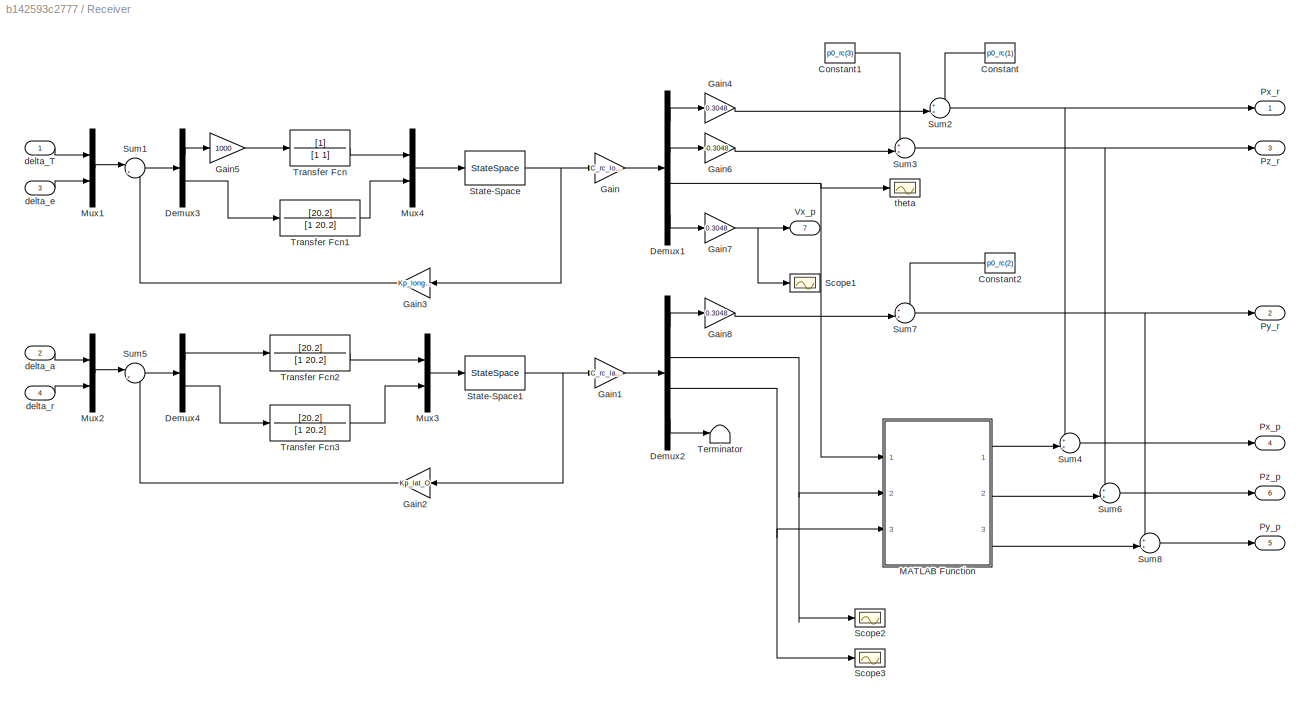
BLOCK [SubSystem] Receiver
  Ports = [4, 7]
  RequestExecContextInheritance = off
  Variant = off
BLOCK [Constant] Receiver/Constant
  Value = p0_rc(1)
BLOCK [Constant] Receiver/Constant1
  Value = p0_rc(3)
BLOCK [Constant] Receiver/Constant2
  Value = p0_rc(2)
BLOCK [Demux] Receiver/Demux1
  DisplayOption = bar
  Ports = [1, 4]
BLOCK [Demux] Receiver/Demux2
  DisplayOption = bar
  Ports = [1, 4]
BLOCK [Demux] Receiver/Demux3
  DisplayOption = bar
  Outputs = 2
  Ports = [1, 2]
BLOCK [Demux] Receiver/Demux4
  DisplayOption = bar
  Outputs = 2
  Ports = [1, 2]
BLOCK [Gain] Receiver/Gain
  Gain = C_rc_long_O
  Multiplication = Matrix(K*u) (u vector)
  OutDataTypeStr = Inherit: Inherit via internal rule
  ParamDataTypeStr = Inherit: Inherit via internal rule
  SaturateOnIntegerOverflow = off
BLOCK [Gain] Receiver/Gain1
  Gain = C_rc_lat_O
  Multiplication = Matrix(K*u) (u vector)
  OutDataTypeStr = Inherit: Inherit via internal rule
  ParamDataTypeStr = Inherit: Inherit via internal rule
  SaturateOnIntegerOverflow = off
BLOCK [Gain] Receiver/Gain2
  Gain = Kp_lat_O
  Multiplication = Matrix(K*u) (u vector)
  OutDataTypeStr = Inherit: Inherit via internal rule
  ParamDataTypeStr = Inherit: Inherit via internal rule
  SaturateOnIntegerOverflow = off
BLOCK [Gain] Receiver/Gain3
  Gain = Kp_long_O
  Multiplication = Matrix(K*u) (u vector)
  OutDataTypeStr = Inherit: Inherit via internal rule
  ParamDataTypeStr = Inherit: Inherit via internal rule
  SaturateOnIntegerOverflow = off
BLOCK [Gain] Receiver/Gain4
  Gain = 0.3048
  OutDataTypeStr = Inherit: Inherit via internal rule
  ParamDataTypeStr = Inherit: Inherit via internal rule
  SaturateOnIntegerOverflow = off
BLOCK [Gain] Receiver/Gain5
  Gain = 1000
  OutDataTypeStr = Inherit: Inherit via internal rule
  ParamDataTypeStr = Inherit: Inherit via internal rule
  SaturateOnIntegerOverflow = off
BLOCK [Gain] Receiver/Gain6
  Gain = -0.3048
  OutDataTypeStr = Inherit: Inherit via internal rule
  ParamDataTypeStr = Inherit: Inherit via internal rule
  SaturateOnIntegerOverflow = off
BLOCK [Gain] Receiver/Gain7
  Gain = 0.3048
  OutDataTypeStr = Inherit: Inherit via internal rule
  ParamDataTypeStr = Inherit: Inherit via internal rule
  SaturateOnIntegerOverflow = off
BLOCK [Gain] Receiver/Gain8
  Gain = 0.3048
  OutDataTypeStr = Inherit: Inherit via internal rule
  ParamDataTypeStr = Inherit: Inherit via internal rule
  SaturateOnIntegerOverflow = off
BLOCK [SubSystem] Receiver/MATLAB Function
  ErrorFcn = Stateflow.Translate.translate
  PermitHierarchicalResolution = ExplicitOnly
  Ports = [3, 3]
  RequestExecContextInheritance = off
  SFBlockType = MATLAB Function
  TreatAsAtomicUnit = on
  Variant = off
BLOCK [Demux] Receiver/MATLAB Function/ Demux 
  Outputs = 1
  Ports = [1, 1]
BLOCK [S-Function] Receiver/MATLAB Function/ SFunction 
  EnableBusSupport = on
  FunctionName = sf_sfun
  Parameters = d_pr_rc
  PortCounts = [3 4]
  Ports = [3, 4]
  SFcnIsStateOwnerBlock = off
  SFunctionDeploymentMode = off
  Tag = Stateflow S-Function TILC_AirRef_v2_longlat_n 1
BLOCK [Terminator] Receiver/MATLAB Function/ Terminator 
BLOCK [Outport] Receiver/MATLAB Function/p_t_x
  IconDisplay = Port number
BLOCK [Outport] Receiver/MATLAB Function/p_t_y
  IconDisplay = Port number
  Port = 3
BLOCK [Outport] Receiver/MATLAB Function/p_t_z
  IconDisplay = Port number
  Port = 2
BLOCK [Inport] Receiver/MATLAB Function/phi
  IconDisplay = Port number
  Port = 2
BLOCK [Inport] Receiver/MATLAB Function/psi
  IconDisplay = Port number
  Port = 3
BLOCK [Inport] Receiver/MATLAB Function/theta
  IconDisplay = Port number
BLOCK [Mux] Receiver/Mux1
  DisplayOption = bar
  Inputs = 2
  Ports = [2, 1]
BLOCK [Mux] Receiver/Mux2
  DisplayOption = bar
  Inputs = 2
  Ports = [2, 1]
BLOCK [Mux] Receiver/Mux3
  DisplayOption = bar
  Inputs = 2
  Ports = [2, 1]
BLOCK [Mux] Receiver/Mux4
  DisplayOption = bar
  Inputs = 2
  Ports = [2, 1]
BLOCK [Outport] Receiver/Px_p
  IconDisplay = Port number
  Port = 4
BLOCK [Outport] Receiver/Px_r
  IconDisplay = Port number
BLOCK [Outport] Receiver/Py_p
  IconDisplay = Port number
  Port = 5
BLOCK [Outport] Receiver/Py_r
  IconDisplay = Port number
  Port = 2
BLOCK [Outport] Receiver/Pz_p
  IconDisplay = Port number
  Port = 6
BLOCK [Outport] Receiver/Pz_r
  IconDisplay = Port number
  Port = 3
BLOCK [Scope] Receiver/Scope1
  NumInputPorts = 1
  Ports = [1]
  ScopeSpecificationString = C++SS(StrPVP('Location','[5, 48, 1925, 1039]'),StrPVP('Open','off'),MxPVP('AxesTitles',53,'struct(''axes1'',''%<SignalLabel>'')'),MxPVP('ScopeGraphics',56,'struct(''FigureColor'',''[0.5 0.5 0.5]'',''AxesColor'',''[0 0 0]'',''AxesTickColor'',''[1 1 1]'',''LineColors'',''[1 1 0;1 0 1;0 1 1;1 0 0;0 1 0;0 0 1]'',''LineStyles'',''-|-|-|-|-|-'',''LineWidths'',''[0.5 0.5 0.5 0.5 0.5 0.5]'',''MarkerStyles...<+271ch>
BLOCK [Scope] Receiver/Scope2
  NumInputPorts = 1
  Ports = [1]
  ScopeSpecificationString = Simulink.scopes.TimeScopeBlockCfg('CurrentConfiguration', extmgr.ConfigurationSet(extmgr.Configuration('Core','General UI',true),extmgr.Configuration('Core','Source UI',true),extmgr.Configuration('Sources','WiredSimulink',true,'DataLoggingVariableName','ScopeData1','DataLoggingSaveFormat','StructureWithTime','DataLoggingLimitDataPoints',true,'DataLoggingDecimation','1','DataLoggingDecimateData',tr...<+1676ch>
BLOCK [Scope] Receiver/Scope3
  NumInputPorts = 1
  Ports = [1]
  ScopeSpecificationString = Simulink.scopes.TimeScopeBlockCfg('CurrentConfiguration', extmgr.ConfigurationSet(extmgr.Configuration('Core','General UI',true),extmgr.Configuration('Core','Source UI',true),extmgr.Configuration('Sources','WiredSimulink',true,'DataLoggingVariableName','ScopeData2','DataLoggingSaveFormat','StructureWithTime','DataLoggingLimitDataPoints',true,'DataLoggingDecimation','1','DataLoggingDecimateData',tr...<+1680ch>
BLOCK [StateSpace] Receiver/State-Space
  A = A_rc_long_O
  B = 0.6*B_rc_long_O
  C = eye(6,6)
  D = zeros(6,2)
  InitialCondition = 0
  Ports = [1, 1]
BLOCK [StateSpace] Receiver/State-Space1
  A = A_rc_lat_O
  B = 0.6*B_rc_lat_O
  C = eye(6,6)
  D = zeros(6,2)
  InitialCondition = 0
  Ports = [1, 1]
BLOCK [Sum] Receiver/Sum1
  IconShape = round
  InputSameDT = off
  Inputs = |+-
  OutDataTypeStr = Inherit: Inherit via internal rule
  Ports = [2, 1]
  SaturateOnIntegerOverflow = off
BLOCK [Sum] Receiver/Sum2
  IconShape = round
  InputSameDT = off
  Inputs = ++|
  OutDataTypeStr = Inherit: Inherit via internal rule
  Ports = [2, 1]
  SaturateOnIntegerOverflow = off
BLOCK [Sum] Receiver/Sum3
  IconShape = round
  InputSameDT = off
  Inputs = ++|
  OutDataTypeStr = Inherit: Inherit via internal rule
  Ports = [2, 1]
  SaturateOnIntegerOverflow = off
BLOCK [Sum] Receiver/Sum4
  IconShape = round
  InputSameDT = off
  Inputs = ++|
  OutDataTypeStr = Inherit: Inherit via internal rule
  Ports = [2, 1]
  SaturateOnIntegerOverflow = off
BLOCK [Sum] Receiver/Sum5
  IconShape = round
  InputSameDT = off
  Inputs = |+-
  OutDataTypeStr = Inherit: Inherit via internal rule
  Ports = [2, 1]
  SaturateOnIntegerOverflow = off
BLOCK [Sum] Receiver/Sum6
  IconShape = round
  InputSameDT = off
  Inputs = ++|
  OutDataTypeStr = Inherit: Inherit via internal rule
  Ports = [2, 1]
  SaturateOnIntegerOverflow = off
BLOCK [Sum] Receiver/Sum7
  IconShape = round
  InputSameDT = off
  Inputs = ++|
  OutDataTypeStr = Inherit: Inherit via internal rule
  Ports = [2, 1]
  SaturateOnIntegerOverflow = off
BLOCK [Sum] Receiver/Sum8
  IconShape = round
  InputSameDT = off
  Inputs = ++|
  OutDataTypeStr = Inherit: Inherit via internal rule
  Ports = [2, 1]
  SaturateOnIntegerOverflow = off
BLOCK [Terminator] Receiver/Terminator
BLOCK [TransferFcn] Receiver/Transfer Fcn
  Denominator = [1 1]
BLOCK [TransferFcn] Receiver/Transfer Fcn1
  Denominator = [1 20.2]
  Numerator = [20.2]
BLOCK [TransferFcn] Receiver/Transfer Fcn2
  Denominator = [1 20.2]
  Numerator = [20.2]
BLOCK [TransferFcn] Receiver/Transfer Fcn3
  Denominator = [1 20.2]
  Numerator = [20.2]
BLOCK [Outport] Receiver/Vx_p
  IconDisplay = Port number
  Port = 7
BLOCK [Inport] Receiver/delta_T
  IconDisplay = Port number
BLOCK [Inport] Receiver/delta_a
  IconDisplay = Port number
  Port = 2
BLOCK [Inport] Receiver/delta_e
  IconDisplay = Port number
  Port = 3
BLOCK [Inport] Receiver/delta_r
  IconDisplay = Port number
  Port = 4
BLOCK [Scope] Receiver/theta
  NumInputPorts = 1
  Ports = [1]
  ScopeSpecificationString = Simulink.scopes.TimeScopeBlockCfg('CurrentConfiguration', extmgr.ConfigurationSet(extmgr.Configuration('Core','General UI',true),extmgr.Configuration('Core','Source UI',true),extmgr.Configuration('Sources','WiredSimulink',true,'DataLoggingVariableName','ScopeData7','DataLoggingSaveFormat','StructureWithTime','DataLoggingLimitDataPoints',true,'DataLoggingDecimation','1','DataLoggingDecimateData',tr...<+1681ch>
BLOCK [Scope] Scope
  NumInputPorts = 1
  Ports = [1]
  ScopeSpecificationString = Simulink.scopes.TimeScopeBlockCfg('CurrentConfiguration', extmgr.ConfigurationSet(extmgr.Configuration('Core','General UI',true),extmgr.Configuration('Core','Source UI',true),extmgr.Configuration('Sources','WiredSimulink',true,'DataLoggingVariableName','ScopeData3','DataLoggingSaveFormat','StructureWithTime','DataLoggingLimitDataPoints',true,'DataLoggingDecimation','1','DataLoggingDecimateData',tr...<+1773ch>
BLOCK [Scope] Scope1
  IOType = viewer
  NumInputPorts = 1
  Ports = []
  ScopeSpecificationString = C++SS(StrPVP('Location','[5, 48, 1925, 1039]'),StrPVP('Open','off'),MxPVP('AxesTitles',53,'struct(''axes1'',''%<SignalLabel>'')'),StrPVP('ShowDataMarkers','off'),StrPVP('ShowLegends','off'),StrPVP('SaveName','ScopeData23'),StrPVP('MaxDataPoints','7500'),StrPVP('LimitDataPoints','on'),StrPVP('DataFormat','Array'),StrPVP('Decimation','1'),StrPVP('BlockParamSampleInput','off'))
BLOCK [Scope] Scope10
  IOType = viewer
  NumInputPorts = 1
  Ports = []
  ScopeSpecificationString = C++SS(StrPVP('Location','[5, 48, 1285, 983]'),StrPVP('Open','off'),StrPVP('ZoomMode','yonly'),MxPVP('AxesTitles',53,'struct(''axes1'',''%<SignalLabel>'')'),StrPVP('ShowDataMarkers','off'),StrPVP('ShowLegends','off'),StrPVP('SaveName','ScopeData6'),StrPVP('MaxDataPoints','7500'),StrPVP('LimitDataPoints','on'),StrPVP('DataFormat','Array'),StrPVP('Decimation','1'),StrPVP('BlockParamSampleInput','off'...<+2ch>
BLOCK [Scope] Scope11
  IOType = viewer
  NumInputPorts = 1
  Ports = []
  ScopeSpecificationString = C++SS(StrPVP('Location','[188, 365, 512, 604]'),StrPVP('Open','off'),MxPVP('AxesTitles',53,'struct(''axes1'',''%<SignalLabel>'')'),StrPVP('ShowDataMarkers','off'),StrPVP('ShowLegends','off'),StrPVP('SaveName','ScopeData7'),StrPVP('MaxDataPoints','7500'),StrPVP('LimitDataPoints','on'),StrPVP('DataFormat','Array'),StrPVP('Decimation','1'),StrPVP('BlockParamSampleInput','off'))
BLOCK [Scope] Scope12
  IOType = viewer
  NumInputPorts = 1
  Ports = []
  ScopeSpecificationString = C++SS(StrPVP('Location','[1, 48, 1281, 983]'),StrPVP('Open','off'),StrPVP('ZoomMode','xonly'),MxPVP('AxesTitles',53,'struct(''axes1'',''%<SignalLabel>'')'),StrPVP('ShowDataMarkers','off'),StrPVP('ShowLegends','off'),StrPVP('SaveName','ScopeData8'),StrPVP('MaxDataPoints','7500'),StrPVP('LimitDataPoints','on'),StrPVP('DataFormat','Array'),StrPVP('Decimation','1'),StrPVP('BlockParamSampleInput','off'...<+2ch>
BLOCK [Scope] Scope13
  IOType = viewer
  NumInputPorts = 1
  Ports = []
  ScopeSpecificationString = C++SS(StrPVP('Location','[24, 76, 1304, 1011]'),StrPVP('Open','off'),MxPVP('AxesTitles',53,'struct(''axes1'',''%<SignalLabel>'')'),StrPVP('ShowDataMarkers','off'),StrPVP('ShowLegends','off'),StrPVP('SaveName','ScopeData10'),StrPVP('MaxDataPoints','7500'),StrPVP('LimitDataPoints','on'),StrPVP('DataFormat','Array'),StrPVP('Decimation','1'),StrPVP('BlockParamSampleInput','off'))
BLOCK [Scope] Scope14
  IOType = viewer
  NumInputPorts = 1
  Ports = []
  ScopeSpecificationString = C++SS(StrPVP('Location','[195, 605, 903, 771]'),StrPVP('Open','off'),StrPVP('ZoomMode','yonly'),MxPVP('AxesTitles',53,'struct(''axes1'',''%<SignalLabel>'')'),StrPVP('ShowDataMarkers','off'),StrPVP('ShowLegends','off'),StrPVP('YMin','-1'),StrPVP('YMax','1'),StrPVP('SaveName','ScopeData11'),StrPVP('MaxDataPoints','7500'),StrPVP('LimitDataPoints','on'),StrPVP('DataFormat','Array'),StrPVP('Decimation'...<+44ch>
BLOCK [Scope] Scope15
  IOType = viewer
  NumInputPorts = 1
  Ports = []
  ScopeSpecificationString = C++SS(StrPVP('Location','[1, 48, 1281, 983]'),StrPVP('Open','off'),MxPVP('AxesTitles',53,'struct(''axes1'',''%<SignalLabel>'')'),StrPVP('ShowDataMarkers','off'),StrPVP('ShowLegends','off'),StrPVP('SaveName','ScopeData12'),StrPVP('MaxDataPoints','7500'),StrPVP('LimitDataPoints','on'),StrPVP('DataFormat','Array'),StrPVP('Decimation','1'),StrPVP('BlockParamSampleInput','off'))
BLOCK [Scope] Scope16
  IOType = viewer
  NumInputPorts = 1
  Ports = []
  ScopeSpecificationString = C++SS(StrPVP('Location','[1, 48, 1281, 983]'),StrPVP('Open','off'),MxPVP('AxesTitles',53,'struct(''axes1'',''%<SignalLabel>'')'),StrPVP('ShowDataMarkers','off'),StrPVP('ShowLegends','off'),StrPVP('SaveName','ScopeData13'),StrPVP('MaxDataPoints','7500'),StrPVP('LimitDataPoints','on'),StrPVP('DataFormat','Array'),StrPVP('Decimation','1'),StrPVP('BlockParamSampleInput','off'))
BLOCK [Scope] Scope17
  IOType = viewer
  NumInputPorts = 1
  Ports = []
  ScopeSpecificationString = C++SS(StrPVP('Location','[1, 48, 1281, 983]'),StrPVP('Open','off'),MxPVP('AxesTitles',53,'struct(''axes1'',''%<SignalLabel>'')'),StrPVP('ShowDataMarkers','off'),StrPVP('ShowLegends','off'),StrPVP('SaveName','ScopeData14'),StrPVP('MaxDataPoints','7500'),StrPVP('LimitDataPoints','on'),StrPVP('DataFormat','Array'),StrPVP('Decimation','1'),StrPVP('BlockParamSampleInput','off'))
BLOCK [Scope] Scope18
  IOType = viewer
  NumInputPorts = 1
  Ports = []
  ScopeSpecificationString = C++SS(StrPVP('Location','[5, 48, 1285, 983]'),StrPVP('Open','off'),MxPVP('AxesTitles',53,'struct(''axes1'',''%<SignalLabel>'')'),StrPVP('ShowDataMarkers','off'),StrPVP('ShowLegends','off'),StrPVP('SaveName','ScopeData15'),StrPVP('MaxDataPoints','7500'),StrPVP('LimitDataPoints','on'),StrPVP('DataFormat','Array'),StrPVP('Decimation','1'),StrPVP('BlockParamSampleInput','off'))
BLOCK [Scope] Scope19
  IOType = viewer
  NumInputPorts = 1
  Ports = []
  ScopeSpecificationString = C++SS(StrPVP('Location','[5, 48, 1285, 983]'),StrPVP('Open','off'),MxPVP('AxesTitles',53,'struct(''axes1'',''%<SignalLabel>'')'),StrPVP('ShowDataMarkers','off'),StrPVP('ShowLegends','off'),StrPVP('SaveName','ScopeData16'),StrPVP('MaxDataPoints','7500'),StrPVP('LimitDataPoints','on'),StrPVP('DataFormat','Array'),StrPVP('Decimation','1'),StrPVP('BlockParamSampleInput','off'))
BLOCK [Scope] Scope2
  NumInputPorts = 1
  Ports = [1]
  ScopeSpecificationString = Simulink.scopes.TimeScopeBlockCfg('CurrentConfiguration', extmgr.ConfigurationSet(extmgr.Configuration('Core','General UI',true),extmgr.Configuration('Core','Source UI',true),extmgr.Configuration('Sources','WiredSimulink',true,'DataLoggingVariableName','ScopeData6','DataLoggingSaveFormat','StructureWithTime','DataLoggingLimitDataPoints',true,'DataLoggingDecimation','1','DataLoggingDecimateData',tr...<+1710ch>
BLOCK [Scope] Scope20
  IOType = viewer
  NumInputPorts = 1
  Ports = []
  ScopeSpecificationString = C++SS(StrPVP('Location','[5, 48, 1285, 983]'),StrPVP('Open','off'),MxPVP('AxesTitles',53,'struct(''axes1'',''%<SignalLabel>'')'),StrPVP('ShowDataMarkers','off'),StrPVP('ShowLegends','off'),StrPVP('SaveName','ScopeData17'),StrPVP('MaxDataPoints','7500'),StrPVP('LimitDataPoints','on'),StrPVP('DataFormat','Array'),StrPVP('Decimation','1'),StrPVP('BlockParamSampleInput','off'))
BLOCK [Scope] Scope21
  IOType = viewer
  NumInputPorts = 1
  Ports = []
  ScopeSpecificationString = C++SS(StrPVP('Location','[1, 48, 1281, 983]'),StrPVP('Open','off'),MxPVP('AxesTitles',53,'struct(''axes1'',''%<SignalLabel>'')'),StrPVP('ShowDataMarkers','off'),StrPVP('ShowLegends','off'),StrPVP('SaveName','ScopeData18'),StrPVP('MaxDataPoints','7500'),StrPVP('LimitDataPoints','on'),StrPVP('DataFormat','Array'),StrPVP('Decimation','1'),StrPVP('BlockParamSampleInput','off'))
BLOCK [Scope] Scope22
  IOType = viewer
  NumInputPorts = 1
  Ports = []
  ScopeSpecificationString = C++SS(StrPVP('Location','[1, 48, 1281, 983]'),StrPVP('Open','off'),MxPVP('AxesTitles',53,'struct(''axes1'',''%<SignalLabel>'')'),StrPVP('ShowDataMarkers','off'),StrPVP('ShowLegends','off'),StrPVP('SaveName','ScopeData19'),StrPVP('MaxDataPoints','7500'),StrPVP('LimitDataPoints','on'),StrPVP('DataFormat','Array'),StrPVP('Decimation','1'),StrPVP('BlockParamSampleInput','off'))
BLOCK [Scope] Scope23
  IOType = viewer
  NumInputPorts = 1
  Ports = []
  ScopeSpecificationString = C++SS(StrPVP('Location','[1, 48, 1281, 983]'),StrPVP('Open','off'),MxPVP('AxesTitles',53,'struct(''axes1'',''%<SignalLabel>'')'),StrPVP('ShowDataMarkers','off'),StrPVP('ShowLegends','off'),StrPVP('SaveName','ScopeData20'),StrPVP('MaxDataPoints','7500'),StrPVP('LimitDataPoints','on'),StrPVP('DataFormat','Array'),StrPVP('Decimation','1'),StrPVP('BlockParamSampleInput','off'))
BLOCK [Scope] Scope24
  IOType = viewer
  NumInputPorts = 1
  Ports = []
  ScopeSpecificationString = C++SS(StrPVP('Location','[1, 48, 1281, 983]'),StrPVP('Open','off'),MxPVP('AxesTitles',53,'struct(''axes1'',''%<SignalLabel>'')'),StrPVP('ShowDataMarkers','off'),StrPVP('ShowLegends','off'),StrPVP('SaveName','ScopeData21'),StrPVP('MaxDataPoints','7500'),StrPVP('LimitDataPoints','on'),StrPVP('DataFormat','Array'),StrPVP('Decimation','1'),StrPVP('BlockParamSampleInput','off'))
BLOCK [Scope] Scope25
  IOType = viewer
  NumInputPorts = 1
  Ports = []
  ScopeSpecificationString = C++SS(StrPVP('Location','[219, 545, 923, 695]'),StrPVP('Open','off'),MxPVP('AxesTitles',53,'struct(''axes1'',''%<SignalLabel>'')'),StrPVP('ShowDataMarkers','off'),StrPVP('ShowLegends','off'),StrPVP('SaveName','ScopeData22'),StrPVP('MaxDataPoints','7500'),StrPVP('LimitDataPoints','on'),StrPVP('DataFormat','Array'),StrPVP('Decimation','1'),StrPVP('BlockParamSampleInput','off'))
BLOCK [Scope] Scope26
  IOType = viewer
  NumInputPorts = 1
  Ports = []
  ScopeSpecificationString = C++SS(StrPVP('Location','[5, 48, 1925, 1039]'),StrPVP('Open','off'),MxPVP('AxesTitles',53,'struct(''axes1'',''%<SignalLabel>'')'),StrPVP('ShowDataMarkers','off'),StrPVP('ShowLegends','off'),StrPVP('SaveName','ScopeData24'),StrPVP('MaxDataPoints','7500'),StrPVP('LimitDataPoints','on'),StrPVP('DataFormat','Array'),StrPVP('Decimation','1'),StrPVP('BlockParamSampleInput','off'))
BLOCK [Scope] Scope27
  NumInputPorts = 1
  Ports = [1]
  ScopeSpecificationString = Simulink.scopes.TimeScopeBlockCfg('CurrentConfiguration', extmgr.ConfigurationSet(extmgr.Configuration('Core','General UI',true),extmgr.Configuration('Core','Source UI',true),extmgr.Configuration('Sources','WiredSimulink',true,'DataLoggingVariableName','ScopeData4','DataLoggingSaveFormat','StructureWithTime','DataLoggingLimitDataPoints',true,'DataLoggingDecimation','1','DataLoggingDecimateData',tr...<+1687ch>
BLOCK [Scope] Scope28
  NumInputPorts = 1
  Ports = [1]
  ScopeSpecificationString = C++SS(StrPVP('Location','[5, 48, 1925, 1039]'),StrPVP('Open','off'),MxPVP('AxesTitles',53,'struct(''axes1'',''%<SignalLabel>'')'),MxPVP('ScopeGraphics',56,'struct(''FigureColor'',''[0.5 0.5 0.5]'',''AxesColor'',''[0 0 0]'',''AxesTickColor'',''[1 1 1]'',''LineColors'',''[1 1 0;1 0 1;0 1 1;1 0 0;0 1 0;0 0 1]'',''LineStyles'',''-|-|-|-|-|-'',''LineWidths'',''[0.5 0.5 0.5 0.5 0.5 0.5]'',''MarkerStyles...<+270ch>
BLOCK [Scope] Scope29
  IOType = viewer
  NumInputPorts = 1
  Ports = []
  ScopeSpecificationString = C++SS(StrPVP('Location','[188, 365, 512, 604]'),StrPVP('Open','off'),MxPVP('AxesTitles',53,'struct(''axes1'',''%<SignalLabel>'')'),StrPVP('ShowDataMarkers','off'),StrPVP('ShowLegends','off'),StrPVP('SaveName','ScopeData25'),StrPVP('MaxDataPoints','7500'),StrPVP('LimitDataPoints','on'),StrPVP('DataFormat','Array'),StrPVP('Decimation','1'),StrPVP('BlockParamSampleInput','off'))
BLOCK [Scope] Scope3
  IOType = viewer
  NumInputPorts = 1
  Ports = []
  ScopeSpecificationString = C++SS(StrPVP('Location','[5, 48, 1285, 983]'),StrPVP('Open','off'),MxPVP('AxesTitles',53,'struct(''axes1'',''%<SignalLabel>'')'),StrPVP('ShowDataMarkers','off'),StrPVP('ShowLegends','off'),StrPVP('TimeRange','8'),StrPVP('YMin','-2895.619158878505'),StrPVP('YMax','-1095.619158878505'),StrPVP('MaxDataPoints','7500'),StrPVP('LimitDataPoints','on'),StrPVP('DataFormat','Array'),StrPVP('Decimation','1')...<+39ch>
BLOCK [Scope] Scope30
  IOType = viewer
  NumInputPorts = 1
  Ports = []
  ScopeSpecificationString = C++SS(StrPVP('Location','[188, 365, 512, 604]'),StrPVP('Open','off'),MxPVP('AxesTitles',53,'struct(''axes1'',''%<SignalLabel>'')'),StrPVP('ShowDataMarkers','off'),StrPVP('ShowLegends','off'),StrPVP('SaveName','ScopeData26'),StrPVP('MaxDataPoints','7500'),StrPVP('LimitDataPoints','on'),StrPVP('DataFormat','Array'),StrPVP('Decimation','1'),StrPVP('BlockParamSampleInput','off'))
BLOCK [Scope] Scope31
  IOType = viewer
  NumInputPorts = 1
  Ports = []
  ScopeSpecificationString = C++SS(StrPVP('Location','[283, 386, 607, 625]'),StrPVP('Open','off'),MxPVP('AxesTitles',53,'struct(''axes1'',''%<SignalLabel>'')'),StrPVP('ShowDataMarkers','off'),StrPVP('ShowLegends','off'),StrPVP('SaveName','ScopeData27'),StrPVP('MaxDataPoints','7500'),StrPVP('LimitDataPoints','on'),StrPVP('DataFormat','Array'),StrPVP('Decimation','1'),StrPVP('BlockParamSampleInput','off'))
BLOCK [Scope] Scope32
  NumInputPorts = 1
  Ports = [1]
  ScopeSpecificationString = C++SS(StrPVP('Location','[5, 49, 1925, 1039]'),StrPVP('Open','off'),MxPVP('AxesTitles',53,'struct(''axes1'',''%<SignalLabel>'')'),MxPVP('ScopeGraphics',56,'struct(''FigureColor'',''[0.5 0.5 0.5]'',''AxesColor'',''[0 0 0]'',''AxesTickColor'',''[1 1 1]'',''LineColors'',''[1 1 0;1 0 1;0 1 1;1 0 0;0 1 0;0 0 1]'',''LineStyles'',''-|-|-|-|-|-'',''LineWidths'',''[0.5 0.5 0.5 0.5 0.5 0.5]'',''MarkerStyles...<+270ch>
BLOCK [Scope] Scope33
  NumInputPorts = 1
  Ports = [1]
  ScopeSpecificationString = Simulink.scopes.TimeScopeBlockCfg('CurrentConfiguration', extmgr.ConfigurationSet(extmgr.Configuration('Core','General UI',true),extmgr.Configuration('Core','Source UI',true),extmgr.Configuration('Sources','WiredSimulink',true,'DataLoggingVariableName','ScopeData11','DataLoggingSaveFormat','StructureWithTime','DataLoggingLimitDataPoints',true,'DataLoggingDecimation','1','DataLoggingDecimateData',t...<+1683ch>
BLOCK [Scope] Scope34
  IOType = viewer
  NumInputPorts = 1
  Ports = []
  ScopeSpecificationString = C++SS(StrPVP('Location','[1, 49, 1921, 1039]'),StrPVP('Open','off'),MxPVP('AxesTitles',53,'struct(''axes1'',''%<SignalLabel>'')'),StrPVP('ShowDataMarkers','off'),StrPVP('ShowLegends','off'),StrPVP('SaveName','ScopeData28'),StrPVP('MaxDataPoints','7500'),StrPVP('LimitDataPoints','on'),StrPVP('DataFormat','Array'),StrPVP('Decimation','1'),StrPVP('BlockParamSampleInput','off'))
BLOCK [Scope] Scope35
  IOType = viewer
  NumInputPorts = 1
  Ports = []
  ScopeSpecificationString = C++SS(StrPVP('Location','[5, 49, 1925, 1039]'),StrPVP('Open','off'),MxPVP('AxesTitles',53,'struct(''axes1'',''%<SignalLabel>'')'),StrPVP('ShowDataMarkers','off'),StrPVP('ShowLegends','off'),StrPVP('SaveName','ScopeData29'),StrPVP('MaxDataPoints','7500'),StrPVP('LimitDataPoints','on'),StrPVP('DataFormat','Array'),StrPVP('Decimation','1'),StrPVP('BlockParamSampleInput','off'))
BLOCK [Scope] Scope36
  NumInputPorts = 1
  Ports = [1]
  ScopeSpecificationString = Simulink.scopes.TimeScopeBlockCfg('CurrentConfiguration', extmgr.ConfigurationSet(extmgr.Configuration('Core','General UI',true),extmgr.Configuration('Core','Source UI',true),extmgr.Configuration('Sources','WiredSimulink',true,'DataLoggingVariableName','ScopeData4'),extmgr.Configuration('Visuals','Time Domain',true,'SerializedDisplays',{struct('MinYLimReal','-6.4838','MaxYLimReal','58.36132','YLab...<+1365ch>
BLOCK [Scope] Scope37
  NumInputPorts = 1
  Ports = [1]
  ScopeSpecificationString = Simulink.scopes.TimeScopeBlockCfg('CurrentConfiguration', extmgr.ConfigurationSet(extmgr.Configuration('Core','General UI',true),extmgr.Configuration('Core','Source UI',true),extmgr.Configuration('Sources','WiredSimulink',true,'DataLoggingVariableName','ScopeData5'),extmgr.Configuration('Visuals','Time Domain',true,'SerializedDisplays',{struct('MinYLimReal','-9.09859','MaxYLimReal','1.02427','YLab...<+1364ch>
BLOCK [Scope] Scope38
  NumInputPorts = 1
  Ports = [1]
  ScopeSpecificationString = Simulink.scopes.TimeScopeBlockCfg('CurrentConfiguration', extmgr.ConfigurationSet(extmgr.Configuration('Core','General UI',true),extmgr.Configuration('Core','Source UI',true),extmgr.Configuration('Sources','WiredSimulink',true,'DataLoggingVariableName','ScopeData6'),extmgr.Configuration('Visuals','Time Domain',true,'SerializedDisplays',{struct('MinYLimReal','-3.20523','MaxYLimReal','0.3661','YLabe...<+1362ch>
BLOCK [Scope] Scope39
  NumInputPorts = 1
  Ports = [1]
  ScopeSpecificationString = C++SS(StrPVP('Location','[5, 49, 1925, 1039]'),StrPVP('Open','off'),MxPVP('AxesTitles',53,'struct(''axes1'',''%<SignalLabel>'')'),MxPVP('ScopeGraphics',56,'struct(''FigureColor'',''[0.5 0.5 0.5]'',''AxesColor'',''[0 0 0]'',''AxesTickColor'',''[1 1 1]'',''LineColors'',''[1 1 0;1 0 1;0 1 1;1 0 0;0 1 0;0 0 1]'',''LineStyles'',''-|-|-|-|-|-'',''LineWidths'',''[0.5 0.5 0.5 0.5 0.5 0.5]'',''MarkerStyles...<+271ch>
BLOCK [Scope] Scope4
  IOType = viewer
  NumInputPorts = 1
  Ports = []
  ScopeSpecificationString = C++SS(StrPVP('Location','[5, 48, 1285, 983]'),StrPVP('Open','off'),StrPVP('ZoomMode','xonly'),MxPVP('AxesTitles',53,'struct(''axes1'',''%<SignalLabel>'')'),StrPVP('ShowDataMarkers','off'),StrPVP('ShowLegends','off'),StrPVP('SaveName','ScopeData1'),StrPVP('MaxDataPoints','7500'),StrPVP('LimitDataPoints','on'),StrPVP('DataFormat','Array'),StrPVP('Decimation','1'),StrPVP('BlockParamSampleInput','off'...<+2ch>
BLOCK [Scope] Scope40
  NumInputPorts = 1
  Ports = [1]
  ScopeSpecificationString = Simulink.scopes.TimeScopeBlockCfg('CurrentConfiguration', extmgr.ConfigurationSet(extmgr.Configuration('Core','General UI',true),extmgr.Configuration('Core','Source UI',true),extmgr.Configuration('Sources','WiredSimulink',true,'DataLoggingVariableName','ScopeData24','DataLoggingSaveFormat','StructureWithTime','DataLoggingLimitDataPoints',true,'DataLoggingDecimation','1','DataLoggingDecimateData',t...<+1710ch>
BLOCK [Scope] Scope41
  NumInputPorts = 1
  Ports = [1]
  ScopeSpecificationString = C++SS(StrPVP('Location','[5, 49, 1925, 1039]'),StrPVP('Open','off'),MxPVP('AxesTitles',53,'struct(''axes1'',''%<SignalLabel>'')'),MxPVP('ScopeGraphics',56,'struct(''FigureColor'',''[0.5 0.5 0.5]'',''AxesColor'',''[0 0 0]'',''AxesTickColor'',''[1 1 1]'',''LineColors'',''[1 1 0;1 0 1;0 1 1;1 0 0;0 1 0;0 0 1]'',''LineStyles'',''-|-|-|-|-|-'',''LineWidths'',''[0.5 0.5 0.5 0.5 0.5 0.5]'',''MarkerStyles...<+271ch>
BLOCK [Scope] Scope42
  NumInputPorts = 1
  Ports = [1]
  ScopeSpecificationString = C++SS(StrPVP('SaveName','ScopeData4'),StrPVP('SaveName','ScopeData7'),StrPVP('LimitDataPoints','on'),StrPVP('DataFormat','Array'),StrPVP('Decimation','1'),StrPVP('BlockParamSampleInput','off'))
BLOCK [Scope] Scope5
  IOType = viewer
  NumInputPorts = 1
  Ports = []
  ScopeSpecificationString = C++SS(StrPVP('Location','[5, 48, 1285, 983]'),StrPVP('Open','off'),MxPVP('AxesTitles',53,'struct(''axes1'',''%<SignalLabel>'')'),StrPVP('ShowDataMarkers','off'),StrPVP('ShowLegends','off'),StrPVP('SaveName','ScopeData2'),StrPVP('MaxDataPoints','7500'),StrPVP('LimitDataPoints','on'),StrPVP('DataFormat','Array'),StrPVP('Decimation','1'),StrPVP('BlockParamSampleInput','off'))
BLOCK [Scope] Scope6
  IOType = viewer
  NumInputPorts = 1
  Ports = []
  ScopeSpecificationString = C++SS(StrPVP('Location','[5, 48, 1285, 983]'),StrPVP('Open','off'),MxPVP('AxesTitles',53,'struct(''axes1'',''%<SignalLabel>'')'),StrPVP('ShowDataMarkers','off'),StrPVP('ShowLegends','off'),StrPVP('SaveName','ScopeData3'),StrPVP('MaxDataPoints','7500'),StrPVP('LimitDataPoints','on'),StrPVP('DataFormat','Array'),StrPVP('Decimation','1'),StrPVP('BlockParamSampleInput','off'))
BLOCK [Scope] Scope7
  IOType = viewer
  NumInputPorts = 1
  Ports = []
  ScopeSpecificationString = C++SS(StrPVP('Location','[5, 48, 1285, 983]'),StrPVP('Open','off'),MxPVP('AxesTitles',53,'struct(''axes1'',''%<SignalLabel>'')'),StrPVP('ShowDataMarkers','off'),StrPVP('ShowLegends','off'),StrPVP('SaveName','ScopeData4'),StrPVP('MaxDataPoints','7500'),StrPVP('LimitDataPoints','on'),StrPVP('DataFormat','Array'),StrPVP('Decimation','1'),StrPVP('BlockParamSampleInput','off'))
BLOCK [Scope] Scope8
  IOType = viewer
  NumInputPorts = 1
  Ports = []
  ScopeSpecificationString = C++SS(StrPVP('Location','[1, 48, 1281, 983]'),StrPVP('Open','off'),MxPVP('AxesTitles',53,'struct(''axes1'',''%<SignalLabel>'')'),StrPVP('ShowDataMarkers','off'),StrPVP('ShowLegends','off'),StrPVP('SaveName','ScopeData5'),StrPVP('MaxDataPoints','7500'),StrPVP('LimitDataPoints','on'),StrPVP('DataFormat','Array'),StrPVP('Decimation','1'),StrPVP('BlockParamSampleInput','off'))
BLOCK [Scope] Scope9
  IOType = viewer
  NumInputPorts = 1
  Ports = []
  ScopeSpecificationString = C++SS(StrPVP('Location','[5, 48, 1285, 983]'),StrPVP('Open','off'),MxPVP('AxesTitles',53,'struct(''axes1'',''%<SignalLabel>'')'),StrPVP('ShowDataMarkers','off'),StrPVP('ShowLegends','off'),StrPVP('SaveName','ScopeData9'),StrPVP('MaxDataPoints','7500'),StrPVP('LimitDataPoints','on'),StrPVP('DataFormat','Array'),StrPVP('Decimation','1'),StrPVP('BlockParamSampleInput','off'))
BLOCK [Sum] Sum
  IconShape = round
  InputSameDT = off
  Inputs = +-|
  OutDataTypeStr = Inherit: Inherit via internal rule
  Ports = [2, 1]
  SaturateOnIntegerOverflow = off
BLOCK [Sum] Sum1
  IconShape = round
  InputSameDT = off
  Inputs = +-|
  OutDataTypeStr = Inherit: Inherit via internal rule
  Ports = [2, 1]
  SaturateOnIntegerOverflow = off
BLOCK [Sum] Sum2
  IconShape = round
  InputSameDT = off
  Inputs = +-|
  OutDataTypeStr = Inherit: Inherit via internal rule
  Ports = [2, 1]
  SaturateOnIntegerOverflow = off
BLOCK [ToWorkspace] To Workspace
  MaxDataPoints = inf
  Ports = [1]
  SampleTime = -1
  VariableName = y_TILC_x
BLOCK [ToWorkspace] To Workspace1
  MaxDataPoints = inf
  Ports = [1]
  SampleTime = -1
  VariableName = y_TILC_z
BLOCK [ToWorkspace] To Workspace10
  MaxDataPoints = inf
  Ports = [1]
  SampleTime = -1
  VariableName = Px_r
BLOCK [ToWorkspace] To Workspace11
  MaxDataPoints = inf
  Ports = [1]
  SampleTime = -1
  VariableName = Py_r
BLOCK [ToWorkspace] To Workspace12
  MaxDataPoints = inf
  Ports = [1]
  SampleTime = -1
  VariableName = Pz_r
BLOCK [ToWorkspace] To Workspace2
  MaxDataPoints = inf
  Ports = [1]
  SampleTime = -1
  VariableName = y_TILC_y
BLOCK [ToWorkspace] To Workspace3
  MaxDataPoints = inf
  Ports = [1]
  SampleTime = -1
  VariableName = y_TILC_v
BLOCK [ToWorkspace] To Workspace4
  MaxDataPoints = inf
  Ports = [1]
  SampleTime = -1
  VariableName = Px_p
BLOCK [ToWorkspace] To Workspace5
  MaxDataPoints = inf
  Ports = [1]
  SampleTime = -1
  VariableName = Py_p
BLOCK [ToWorkspace] To Workspace6
  MaxDataPoints = inf
  Ports = [1]
  SampleTime = -1
  VariableName = Pz_p
BLOCK [ToWorkspace] To Workspace7
  MaxDataPoints = inf
  Ports = [1]
  SampleTime = -1
  VariableName = Px_d
BLOCK [ToWorkspace] To Workspace8
  MaxDataPoints = inf
  Ports = [1]
  SampleTime = -1
  VariableName = Py_d
BLOCK [ToWorkspace] To Workspace9
  MaxDataPoints = inf
  Ports = [1]
  SampleTime = -1
  VariableName = Pz_d
BLOCK [Scope] theta
  NumInputPorts = 1
  Ports = [1]
  ScopeSpecificationString = Simulink.scopes.TimeScopeBlockCfg('CurrentConfiguration', extmgr.ConfigurationSet(extmgr.Configuration('Core','General UI',true),extmgr.Configuration('Core','Source UI',true),extmgr.Configuration('Sources','WiredSimulink',true,'DataLoggingVariableName','ScopeData1','DataLoggingSaveFormat','StructureWithTime','DataLoggingLimitDataPoints',true,'DataLoggingDecimation','1','DataLoggingDecimateData',tr...<+1691ch>
BLOCK [Scope] theta1
  NumInputPorts = 1
  Ports = [1]
  ScopeSpecificationString = Simulink.scopes.TimeScopeBlockCfg('CurrentConfiguration', extmgr.ConfigurationSet(extmgr.Configuration('Core','General UI',true),extmgr.Configuration('Core','Source UI',true),extmgr.Configuration('Sources','WiredSimulink',true,'DataLoggingVariableName','ScopeData2','DataLoggingSaveFormat','StructureWithTime','DataLoggingLimitDataPoints',true,'DataLoggingDecimation','1','DataLoggingDecimateData',tr...<+1683ch>
BLOCK [Scope] theta2
  NumInputPorts = 1
  Ports = [1]
  ScopeSpecificationString = Simulink.scopes.TimeScopeBlockCfg('CurrentConfiguration', extmgr.ConfigurationSet(extmgr.Configuration('Core','General UI',true),extmgr.Configuration('Core','Source UI',true),extmgr.Configuration('Sources','WiredSimulink',true,'DataLoggingVariableName','ScopeData3','DataLoggingSaveFormat','StructureWithTime','DataLoggingLimitDataPoints',true,'DataLoggingDecimation','1','DataLoggingDecimateData',tr...<+1680ch>
BLOCK [Scope] theta3
  NumInputPorts = 1
  Ports = [1]
  ScopeSpecificationString = Simulink.scopes.TimeScopeBlockCfg('CurrentConfiguration', extmgr.ConfigurationSet(extmgr.Configuration('Core','General UI',true),extmgr.Configuration('Core','Source UI',true),extmgr.Configuration('Sources','WiredSimulink',true,'DataLoggingVariableName','ScopeData4','DataLoggingSaveFormat','StructureWithTime','DataLoggingLimitDataPoints',true,'DataLoggingDecimation','1','DataLoggingDecimateData',tr...<+1682ch>
BLOCK [Scope] theta4
  NumInputPorts = 1
  Ports = [1]
  ScopeSpecificationString = Simulink.scopes.TimeScopeBlockCfg('CurrentConfiguration', extmgr.ConfigurationSet(extmgr.Configuration('Core','General UI',true),extmgr.Configuration('Core','Source UI',true),extmgr.Configuration('Sources','WiredSimulink',true,'DataLoggingVariableName','ScopeData5','DataLoggingSaveFormat','StructureWithTime','DataLoggingLimitDataPoints',true,'DataLoggingDecimation','1','DataLoggingDecimateData',tr...<+1690ch>
BLOCK [Scope] theta5
  NumInputPorts = 1
  Ports = [1]
  ScopeSpecificationString = Simulink.scopes.TimeScopeBlockCfg('CurrentConfiguration', extmgr.ConfigurationSet(extmgr.Configuration('Core','General UI',true),extmgr.Configuration('Core','Source UI',true),extmgr.Configuration('Sources','WiredSimulink',true,'DataLoggingVariableName','ScopeData7','DataLoggingSaveFormat','StructureWithTime','DataLoggingLimitDataPoints',true,'DataLoggingDecimation','1','DataLoggingDecimateData',tr...<+1680ch>
BLOCK [Scope] theta6
  NumInputPorts = 1
  Ports = [1]
  ScopeSpecificationString = Simulink.scopes.TimeScopeBlockCfg('CurrentConfiguration', extmgr.ConfigurationSet(extmgr.Configuration('Core','General UI',true),extmgr.Configuration('Core','Source UI',true),extmgr.Configuration('Sources','WiredSimulink',true,'DataLoggingVariableName','ScopeData8','DataLoggingSaveFormat','StructureWithTime','DataLoggingLimitDataPoints',true,'DataLoggingDecimation','1','DataLoggingDecimateData',tr...<+1689ch>
BLOCK [Scope] theta7
  NumInputPorts = 1
  Ports = [1]
  ScopeSpecificationString = Simulink.scopes.TimeScopeBlockCfg('CurrentConfiguration', extmgr.ConfigurationSet(extmgr.Configuration('Core','General UI',true),extmgr.Configuration('Core','Source UI',true),extmgr.Configuration('Sources','WiredSimulink',true,'DataLoggingVariableName','ScopeData9','DataLoggingSaveFormat','StructureWithTime','DataLoggingLimitDataPoints',true,'DataLoggingDecimation','1','DataLoggingDecimateData',tr...<+1680ch>
BLOCK [Scope] theta8
  NumInputPorts = 1
  Ports = [1]
  ScopeSpecificationString = Simulink.scopes.TimeScopeBlockCfg('CurrentConfiguration', extmgr.ConfigurationSet(extmgr.Configuration('Core','General UI',true),extmgr.Configuration('Core','Source UI',true),extmgr.Configuration('Sources','WiredSimulink',true,'DataLoggingVariableName','ScopeData10','DataLoggingSaveFormat','StructureWithTime','DataLoggingLimitDataPoints',true,'DataLoggingDecimation','1','DataLoggingDecimateData',t...<+1672ch>
ANNOTATION Drogue: Side wind disturbance
ANNOTATION Drogue: WindTurb_pqr
ANNOTATION Drogue: WindTurb_uvw
ANNOTATION Drogue/Fbw: Bow wave Mag. disterbance
LINE Drogue/ :1 -> Drogue/Total Turbulence  :1
LINE Drogue/Band-Limited White Noise1:1 -> Drogue/Nx:1
LINE Drogue/Band-Limited White Noise2:1 -> Drogue/Ny:1
LINE Drogue/Band-Limited White Noise4:1 -> Drogue/Nz:1
LINE Drogue/DRdynamics/Demux:1 -> Drogue/DRdynamics/Pxdr_tk:1
LINE Drogue/DRdynamics/Demux:2 -> Drogue/DRdynamics/Pydr_tk:1
LINE Drogue/DRdynamics/Demux:3 -> Drogue/DRdynamics/Pzdr_tk:1
LINE Drogue/DRdynamics/Fx_dr:1 -> Drogue/DRdynamics/Mux1:1
LINE Drogue/DRdynamics/Fy_dr:1 -> Drogue/DRdynamics/Mux1:2
LINE Drogue/DRdynamics/Fz_dr:1 -> Drogue/DRdynamics/Mux1:3
LINE Drogue/DRdynamics/HDU/Compare To Zero:1 -> Drogue/DRdynamics/HDU/Stop Simulation:1
NET Drogue/DRdynamics/HDU/Divide:1 -> Drogue/DRdynamics/HDU/Saturation:1, Drogue/DRdynamics/HDU/Scope2:1
NET Drogue/DRdynamics/HDU/Integrator1:1 -> Drogue/DRdynamics/HDU/Compare To Zero:1, Drogue/DRdynamics/HDU/MATLAB Function1:1, Drogue/DRdynamics/HDU/Memory2:1, Drogue/DRdynamics/HDU/Scope1:1, Drogue/DRdynamics/HDU/To Workspace3:1
NET Drogue/DRdynamics/HDU/Integrator:1 -> Drogue/DRdynamics/HDU/Integrator1:1, Drogue/DRdynamics/HDU/MATLAB Function1:3, Drogue/DRdynamics/HDU/MATLAB Function2:4, Drogue/DRdynamics/HDU/Scope8:1
LINE Drogue/DRdynamics/HDU/MATLAB Function1:1 -> Drogue/DRdynamics/HDU/Memory3:1
LINE Drogue/DRdynamics/HDU/MATLAB Function1:2 -> Drogue/DRdynamics/HDU/l_1:1
LINE Drogue/DRdynamics/HDU/MATLAB Function1:3 -> Drogue/DRdynamics/HDU/dl_1:1
NET Drogue/DRdynamics/HDU/MATLAB Function1:4 -> Drogue/DRdynamics/HDU/Scope7:1, Drogue/DRdynamics/HDU/ddl_1:1
NET Drogue/DRdynamics/HDU/MATLAB Function2:1 -> Drogue/DRdynamics/HDU/Divide:1, Drogue/DRdynamics/HDU/Scope3:1
LINE Drogue/DRdynamics/HDU/Memory2:1 -> Drogue/DRdynamics/HDU/MATLAB Function2:1
NET Drogue/DRdynamics/HDU/Memory3:1 -> Drogue/DRdynamics/HDU/Integrator1:2, Drogue/DRdynamics/HDU/Integrator:2
NET Drogue/DRdynamics/HDU/Saturation:1 -> Drogue/DRdynamics/HDU/Integrator:1, Drogue/DRdynamics/HDU/MATLAB Function1:4, Drogue/DRdynamics/HDU/Scope5:1
LINE Drogue/DRdynamics/HDU/l1 initial1:1 -> Drogue/DRdynamics/HDU/MATLAB Function1:2
LINE Drogue/DRdynamics/HDU/m_reel:1 -> Drogue/DRdynamics/HDU/Divide:2
LINE Drogue/DRdynamics/HDU/t_hose:1 -> Drogue/DRdynamics/HDU/MATLAB Function2:3
LINE Drogue/DRdynamics/HDU/t_reel:1 -> Drogue/DRdynamics/HDU/MATLAB Function2:2
LINE Drogue/DRdynamics/HDU:1 -> Drogue/DRdynamics/Hose-Drogue:5
LINE Drogue/DRdynamics/HDU:2 -> Drogue/DRdynamics/Hose-Drogue:6
LINE Drogue/DRdynamics/HDU:3 -> Drogue/DRdynamics/Hose-Drogue:7
LINE Drogue/DRdynamics/Hose-Drogue/Atmosphere Data/1-D Lookup Table:1 -> Drogue/DRdynamics/Hose-Drogue/Atmosphere Data/viscosity:1
LINE Drogue/DRdynamics/Hose-Drogue/Atmosphere Data/COESA Atmosphere Model:1 -> Drogue/DRdynamics/Hose-Drogue/Atmosphere Data/Terminator:1
LINE Drogue/DRdynamics/Hose-Drogue/Atmosphere Data/COESA Atmosphere Model:2 -> Drogue/DRdynamics/Hose-Drogue/Atmosphere Data/Terminator1:1
LINE Drogue/DRdynamics/Hose-Drogue/Atmosphere Data/COESA Atmosphere Model:3 -> Drogue/DRdynamics/Hose-Drogue/Atmosphere Data/Terminator2:1
LINE Drogue/DRdynamics/Hose-Drogue/Atmosphere Data/COESA Atmosphere Model:4 -> Drogue/DRdynamics/Hose-Drogue/Atmosphere Data/densitiy:1
NET Drogue/DRdynamics/Hose-Drogue/Atmosphere Data/height:1 -> Drogue/DRdynamics/Hose-Drogue/Atmosphere Data/1-D Lookup Table:1, Drogue/DRdynamics/Hose-Drogue/Atmosphere Data/COESA Atmosphere Model:1
LINE Drogue/DRdynamics/Hose-Drogue/Atmosphere Data:1 -> Drogue/DRdynamics/Hose-Drogue/Calculate the External Force of the Links:6
LINE Drogue/DRdynamics/Hose-Drogue/Atmosphere Data:2 -> Drogue/DRdynamics/Hose-Drogue/Calculate the External Force of the Links:7
LINE Drogue/DRdynamics/Hose-Drogue/Calculate the Acceleration of the Links1/DD l1 length:1 -> Drogue/DRdynamics/Hose-Drogue/Calculate the Acceleration of the Links1/MATLAB Function4:6
LINE Drogue/DRdynamics/Hose-Drogue/Calculate the Acceleration of the Links1/MATLAB Function2:1 -> Drogue/DRdynamics/Hose-Drogue/Calculate the Acceleration of the Links1/t:1
LINE Drogue/DRdynamics/Hose-Drogue/Calculate the Acceleration of the Links1/MATLAB Function2:2 -> Drogue/DRdynamics/Hose-Drogue/Calculate the Acceleration of the Links1/MATLAB Function3:1
LINE Drogue/DRdynamics/Hose-Drogue/Calculate the Acceleration of the Links1/MATLAB Function3:1 -> Drogue/DRdynamics/Hose-Drogue/Calculate the Acceleration of the Links1/a:1
LINE Drogue/DRdynamics/Hose-Drogue/Calculate the Acceleration of the Links1/MATLAB Function4:1 -> Drogue/DRdynamics/Hose-Drogue/Calculate the Acceleration of the Links1/MATLAB Function2:2
LINE Drogue/DRdynamics/Hose-Drogue/Calculate the Acceleration of the Links1/MATLAB Function:1 -> Drogue/DRdynamics/Hose-Drogue/Calculate the Acceleration of the Links1/MATLAB Function2:1
LINE Drogue/DRdynamics/Hose-Drogue/Calculate the Acceleration of the Links1/Mdr:1 -> Drogue/DRdynamics/Hose-Drogue/Calculate the Acceleration of the Links1/MATLAB Function3:5
NET Drogue/DRdynamics/Hose-Drogue/Calculate the Acceleration of the Links1/Product:1 -> Drogue/DRdynamics/Hose-Drogue/Calculate the Acceleration of the Links1/MATLAB Function3:4, Drogue/DRdynamics/Hose-Drogue/Calculate the Acceleration of the Links1/MATLAB Function4:4, Drogue/DRdynamics/Hose-Drogue/Calculate the Acceleration of the Links1/MATLAB Function:2
NET Drogue/DRdynamics/Hose-Drogue/Calculate the Acceleration of the Links1/Q:1 -> Drogue/DRdynamics/Hose-Drogue/Calculate the Acceleration of the Links1/MATLAB Function3:2, Drogue/DRdynamics/Hose-Drogue/Calculate the Acceleration of the Links1/MATLAB Function4:3
LINE Drogue/DRdynamics/Hose-Drogue/Calculate the Acceleration of the Links1/dn:1 -> Drogue/DRdynamics/Hose-Drogue/Calculate the Acceleration of the Links1/MATLAB Function4:2
NET Drogue/DRdynamics/Hose-Drogue/Calculate the Acceleration of the Links1/l1 length:1 -> Drogue/DRdynamics/Hose-Drogue/Calculate the Acceleration of the Links1/MATLAB Function4:5, Drogue/DRdynamics/Hose-Drogue/Calculate the Acceleration of the Links1/Product:2
LINE Drogue/DRdynamics/Hose-Drogue/Calculate the Acceleration of the Links1/link line density:1 -> Drogue/DRdynamics/Hose-Drogue/Calculate the Acceleration of the Links1/Product:1
NET Drogue/DRdynamics/Hose-Drogue/Calculate the Acceleration of the Links1/n:1 -> Drogue/DRdynamics/Hose-Drogue/Calculate the Acceleration of the Links1/MATLAB Function3:3, Drogue/DRdynamics/Hose-Drogue/Calculate the Acceleration of the Links1/MATLAB Function4:1, Drogue/DRdynamics/Hose-Drogue/Calculate the Acceleration of the Links1/MATLAB Function:1
LINE Drogue/DRdynamics/Hose-Drogue/Calculate the Acceleration of the Links1/tanker acceleration :1 -> Drogue/DRdynamics/Hose-Drogue/Calculate the Acceleration of the Links1/MATLAB Function4:7
NET Drogue/DRdynamics/Hose-Drogue/Calculate the Acceleration of the Links1:1 -> Drogue/DRdynamics/Hose-Drogue/Calculate the Orientation of the Links1:3, Drogue/DRdynamics/Hose-Drogue/Scope8:1
LINE Drogue/DRdynamics/Hose-Drogue/Calculate the Acceleration of the Links1:2 -> Drogue/DRdynamics/Hose-Drogue/t:1
LINE Drogue/DRdynamics/Hose-Drogue/Calculate the External Force of the Links/Drogue Coeffecint:1 -> Drogue/DRdynamics/Hose-Drogue/Calculate the External Force of the Links/MATLAB Function1:9
NET Drogue/DRdynamics/Hose-Drogue/Calculate the External Force of the Links/Drogue Mass:1 -> Drogue/DRdynamics/Hose-Drogue/Calculate the External Force of the Links/MATLAB Function1:10, Drogue/DRdynamics/Hose-Drogue/Calculate the External Force of the Links/Mdr:1
LINE Drogue/DRdynamics/Hose-Drogue/Calculate the External Force of the Links/Drogue Radius:1 -> Drogue/DRdynamics/Hose-Drogue/Calculate the External Force of the Links/MATLAB Function1:8
LINE Drogue/DRdynamics/Hose-Drogue/Calculate the External Force of the Links/Fb:1 -> Drogue/DRdynamics/Hose-Drogue/Calculate the External Force of the Links/MATLAB Function1:13
LINE Drogue/DRdynamics/Hose-Drogue/Calculate the External Force of the Links/MATLAB Function1:1 -> Drogue/DRdynamics/Hose-Drogue/Calculate the External Force of the Links/Q:1
LINE Drogue/DRdynamics/Hose-Drogue/Calculate the External Force of the Links/MATLAB Function1:2 -> Drogue/DRdynamics/Hose-Drogue/Calculate the External Force of the Links/Scope1:1
LINE Drogue/DRdynamics/Hose-Drogue/Calculate the External Force of the Links/MATLAB Function1:3 -> Drogue/DRdynamics/Hose-Drogue/Calculate the External Force of the Links/Scope3:1
LINE Drogue/DRdynamics/Hose-Drogue/Calculate the External Force of the Links/MATLAB Function1:4 -> Drogue/DRdynamics/Hose-Drogue/Calculate the External Force of the Links/Scope4:1
LINE Drogue/DRdynamics/Hose-Drogue/Calculate the External Force of the Links/MATLAB Function1:5 -> Drogue/DRdynamics/Hose-Drogue/Calculate the External Force of the Links/Scope5:1
LINE Drogue/DRdynamics/Hose-Drogue/Calculate the External Force of the Links/MATLAB Function1:6 -> Drogue/DRdynamics/Hose-Drogue/Calculate the External Force of the Links/Scope6:1
LINE Drogue/DRdynamics/Hose-Drogue/Calculate the External Force of the Links/MATLAB Function1:7 -> Drogue/DRdynamics/Hose-Drogue/Calculate the External Force of the Links/Scope7:1
LINE Drogue/DRdynamics/Hose-Drogue/Calculate the External Force of the Links/MATLAB Function1:8 -> Drogue/DRdynamics/Hose-Drogue/Calculate the External Force of the Links/Scope8:1
LINE Drogue/DRdynamics/Hose-Drogue/Calculate the External Force of the Links/MATLAB Function1:9 -> Drogue/DRdynamics/Hose-Drogue/Calculate the External Force of the Links/Scope9:1
LINE Drogue/DRdynamics/Hose-Drogue/Calculate the External Force of the Links/MATLAB Function:1 -> Drogue/DRdynamics/Hose-Drogue/Calculate the External Force of the Links/Scope:1
LINE Drogue/DRdynamics/Hose-Drogue/Calculate the External Force of the Links/MATLAB Function:2 -> Drogue/DRdynamics/Hose-Drogue/Calculate the External Force of the Links/MATLAB Function1:3
LINE Drogue/DRdynamics/Hose-Drogue/Calculate the External Force of the Links/MATLAB Function:3 -> Drogue/DRdynamics/Hose-Drogue/Calculate the External Force of the Links/Scope2:1
LINE Drogue/DRdynamics/Hose-Drogue/Calculate the External Force of the Links/MATLAB Function:4 -> Drogue/DRdynamics/Hose-Drogue/Calculate the External Force of the Links/MATLAB Function1:4
LINE Drogue/DRdynamics/Hose-Drogue/Calculate the External Force of the Links/density:1 -> Drogue/DRdynamics/Hose-Drogue/Calculate the External Force of the Links/MATLAB Function1:6
LINE Drogue/DRdynamics/Hose-Drogue/Calculate the External Force of the Links/l1:1 -> Drogue/DRdynamics/Hose-Drogue/Calculate the External Force of the Links/MATLAB Function1:5
LINE Drogue/DRdynamics/Hose-Drogue/Calculate the External Force of the Links/link line density:1 -> Drogue/DRdynamics/Hose-Drogue/Calculate the External Force of the Links/MATLAB Function1:11
NET Drogue/DRdynamics/Hose-Drogue/Calculate the External Force of the Links/link radius:1 -> Drogue/DRdynamics/Hose-Drogue/Calculate the External Force of the Links/MATLAB Function1:7, Drogue/DRdynamics/Hose-Drogue/Calculate the External Force of the Links/MATLAB Function:3
NET Drogue/DRdynamics/Hose-Drogue/Calculate the External Force of the Links/n:1 -> Drogue/DRdynamics/Hose-Drogue/Calculate the External Force of the Links/MATLAB Function1:2, Drogue/DRdynamics/Hose-Drogue/Calculate the External Force of the Links/MATLAB Function:2
LINE Drogue/DRdynamics/Hose-Drogue/Calculate the External Force of the Links/p:1 -> Drogue/DRdynamics/Hose-Drogue/Calculate the External Force of the Links/MATLAB Function1:12
LINE Drogue/DRdynamics/Hose-Drogue/Calculate the External Force of the Links/viscosity:1 -> Drogue/DRdynamics/Hose-Drogue/Calculate the External Force of the Links/MATLAB Function:4
NET Drogue/DRdynamics/Hose-Drogue/Calculate the External Force of the Links/vr:1 -> Drogue/DRdynamics/Hose-Drogue/Calculate the External Force of the Links/MATLAB Function1:1, Drogue/DRdynamics/Hose-Drogue/Calculate the External Force of the Links/MATLAB Function:1
NET Drogue/DRdynamics/Hose-Drogue/Calculate the External Force of the Links:1 -> Drogue/DRdynamics/Hose-Drogue/Calculate the Acceleration of the Links1:1, Drogue/DRdynamics/Hose-Drogue/Scope:1
LINE Drogue/DRdynamics/Hose-Drogue/Calculate the External Force of the Links:2 -> Drogue/DRdynamics/Hose-Drogue/Calculate the Acceleration of the Links1:2
NET Drogue/DRdynamics/Hose-Drogue/Calculate the Orientation of the Links1/D link length:1 -> Drogue/DRdynamics/Hose-Drogue/Calculate the Orientation of the Links1/MATLAB Function4:11, Drogue/DRdynamics/Hose-Drogue/Calculate the Orientation of the Links1/MATLAB Function5:5
LINE Drogue/DRdynamics/Hose-Drogue/Calculate the Orientation of the Links1/Derivative1:1 -> Drogue/DRdynamics/Hose-Drogue/Calculate the Orientation of the Links1/MATLAB Function4:6
LINE Drogue/DRdynamics/Hose-Drogue/Calculate the Orientation of the Links1/Derivative2:1 -> Drogue/DRdynamics/Hose-Drogue/Calculate the Orientation of the Links1/MATLAB Function4:7
NET Drogue/DRdynamics/Hose-Drogue/Calculate the Orientation of the Links1/Derivative:1 -> Drogue/DRdynamics/Hose-Drogue/Calculate the Orientation of the Links1/MATLAB Function4:5, Drogue/DRdynamics/Hose-Drogue/Calculate the Orientation of the Links1/MATLAB Function5:3, Drogue/DRdynamics/Hose-Drogue/Calculate the Orientation of the Links1/dn:1
NET Drogue/DRdynamics/Hose-Drogue/Calculate the Orientation of the Links1/Integrator1:1 -> Drogue/DRdynamics/Hose-Drogue/Calculate the Orientation of the Links1/MATLAB Function:1, Drogue/DRdynamics/Hose-Drogue/Calculate the Orientation of the Links1/Scope10:1, Drogue/DRdynamics/Hose-Drogue/Calculate the Orientation of the Links1/To Workspace:1
NET Drogue/DRdynamics/Hose-Drogue/Calculate the Orientation of the Links1/Integrator2:1 -> Drogue/DRdynamics/Hose-Drogue/Calculate the Orientation of the Links1/Integrator3:1, Drogue/DRdynamics/Hose-Drogue/Calculate the Orientation of the Links1/MATLAB Function4:9
NET Drogue/DRdynamics/Hose-Drogue/Calculate the Orientation of the Links1/Integrator3:1 -> Drogue/DRdynamics/Hose-Drogue/Calculate the Orientation of the Links1/MATLAB Function:2, Drogue/DRdynamics/Hose-Drogue/Calculate the Orientation of the Links1/Scope1:1, Drogue/DRdynamics/Hose-Drogue/Calculate the Orientation of the Links1/To Workspace1:1
NET Drogue/DRdynamics/Hose-Drogue/Calculate the Orientation of the Links1/Integrator:1 -> Drogue/DRdynamics/Hose-Drogue/Calculate the Orientation of the Links1/Integrator1:1, Drogue/DRdynamics/Hose-Drogue/Calculate the Orientation of the Links1/MATLAB Function4:8
LINE Drogue/DRdynamics/Hose-Drogue/Calculate the Orientation of the Links1/MATLAB Function4:1 -> Drogue/DRdynamics/Hose-Drogue/Calculate the Orientation of the Links1/Integrator:1
LINE Drogue/DRdynamics/Hose-Drogue/Calculate the Orientation of the Links1/MATLAB Function4:2 -> Drogue/DRdynamics/Hose-Drogue/Calculate the Orientation of the Links1/Integrator2:1
LINE Drogue/DRdynamics/Hose-Drogue/Calculate the Orientation of the Links1/MATLAB Function5:1 -> Drogue/DRdynamics/Hose-Drogue/Calculate the Orientation of the Links1/vr:1
LINE Drogue/DRdynamics/Hose-Drogue/Calculate the Orientation of the Links1/MATLAB Function5:2 -> Drogue/DRdynamics/Hose-Drogue/Calculate the Orientation of the Links1/p:1
LINE Drogue/DRdynamics/Hose-Drogue/Calculate the Orientation of the Links1/MATLAB Function5:3 -> Drogue/DRdynamics/Hose-Drogue/Calculate the Orientation of the Links1/pdr:1
NET Drogue/DRdynamics/Hose-Drogue/Calculate the Orientation of the Links1/MATLAB Function:1 -> Drogue/DRdynamics/Hose-Drogue/Calculate the Orientation of the Links1/Derivative1:1, Drogue/DRdynamics/Hose-Drogue/Calculate the Orientation of the Links1/MATLAB Function4:3
NET Drogue/DRdynamics/Hose-Drogue/Calculate the Orientation of the Links1/MATLAB Function:2 -> Drogue/DRdynamics/Hose-Drogue/Calculate the Orientation of the Links1/Derivative2:1, Drogue/DRdynamics/Hose-Drogue/Calculate the Orientation of the Links1/MATLAB Function4:4
NET Drogue/DRdynamics/Hose-Drogue/Calculate the Orientation of the Links1/MATLAB Function:3 -> Drogue/DRdynamics/Hose-Drogue/Calculate the Orientation of the Links1/Derivative:1, Drogue/DRdynamics/Hose-Drogue/Calculate the Orientation of the Links1/MATLAB Function5:2, Drogue/DRdynamics/Hose-Drogue/Calculate the Orientation of the Links1/n:1
LINE Drogue/DRdynamics/Hose-Drogue/Calculate the Orientation of the Links1/a:1 -> Drogue/DRdynamics/Hose-Drogue/Calculate the Orientation of the Links1/MATLAB Function4:1
LINE Drogue/DRdynamics/Hose-Drogue/Calculate the Orientation of the Links1/at:1 -> Drogue/DRdynamics/Hose-Drogue/Calculate the Orientation of the Links1/MATLAB Function4:2
NET Drogue/DRdynamics/Hose-Drogue/Calculate the Orientation of the Links1/link length:1 -> Drogue/DRdynamics/Hose-Drogue/Calculate the Orientation of the Links1/MATLAB Function4:10, Drogue/DRdynamics/Hose-Drogue/Calculate the Orientation of the Links1/MATLAB Function5:4
LINE Drogue/DRdynamics/Hose-Drogue/Calculate the Orientation of the Links1/pt:1 -> Drogue/DRdynamics/Hose-Drogue/Calculate the Orientation of the Links1/MATLAB Function5:7
LINE Drogue/DRdynamics/Hose-Drogue/Calculate the Orientation of the Links1/vt:1 -> Drogue/DRdynamics/Hose-Drogue/Calculate the Orientation of the Links1/MATLAB Function5:1
LINE Drogue/DRdynamics/Hose-Drogue/Calculate the Orientation of the Links1/w:1 -> Drogue/DRdynamics/Hose-Drogue/Calculate the Orientation of the Links1/MATLAB Function5:6
NET Drogue/DRdynamics/Hose-Drogue/Calculate the Orientation of the Links1:1 -> Drogue/DRdynamics/Hose-Drogue/Calculate the Acceleration of the Links1:3, Drogue/DRdynamics/Hose-Drogue/Calculate the External Force of the Links:2, Drogue/DRdynamics/Hose-Drogue/MATLAB Function3:1
LINE Drogue/DRdynamics/Hose-Drogue/Calculate the Orientation of the Links1:2 -> Drogue/DRdynamics/Hose-Drogue/Calculate the Acceleration of the Links1:4
LINE Drogue/DRdynamics/Hose-Drogue/Calculate the Orientation of the Links1:3 -> Drogue/DRdynamics/Hose-Drogue/Calculate the External Force of the Links:1
NET Drogue/DRdynamics/Hose-Drogue/Calculate the Orientation of the Links1:4 -> Drogue/DRdynamics/Hose-Drogue/Calculate the External Force of the Links:8, Drogue/DRdynamics/Hose-Drogue/p link:1
LINE Drogue/DRdynamics/Hose-Drogue/Calculate the Orientation of the Links1:5 -> Drogue/DRdynamics/Hose-Drogue/pdr:1
LINE Drogue/DRdynamics/Hose-Drogue/D link length:1 -> Drogue/DRdynamics/Hose-Drogue/Calculate the Orientation of the Links1:2
LINE Drogue/DRdynamics/Hose-Drogue/DD link length:1 -> Drogue/DRdynamics/Hose-Drogue/Calculate the Acceleration of the Links1:7
LINE Drogue/DRdynamics/Hose-Drogue/Fb:1 -> Drogue/DRdynamics/Hose-Drogue/Calculate the External Force of the Links:9
LINE Drogue/DRdynamics/Hose-Drogue/Height:1 -> Drogue/DRdynamics/Hose-Drogue/Atmosphere Data:1
LINE Drogue/DRdynamics/Hose-Drogue/MATLAB Function3:1 -> Drogue/DRdynamics/Hose-Drogue/Scope1:1
NET Drogue/DRdynamics/Hose-Drogue/at:1 -> Drogue/DRdynamics/Hose-Drogue/Calculate the Acceleration of the Links1:8, Drogue/DRdynamics/Hose-Drogue/Calculate the Orientation of the Links1:4
NET Drogue/DRdynamics/Hose-Drogue/link length:1 -> Drogue/DRdynamics/Hose-Drogue/Calculate the Acceleration of the Links1:6, Drogue/DRdynamics/Hose-Drogue/Calculate the External Force of the Links:3, Drogue/DRdynamics/Hose-Drogue/Calculate the Orientation of the Links1:1
NET Drogue/DRdynamics/Hose-Drogue/link line density:1 -> Drogue/DRdynamics/Hose-Drogue/Calculate the Acceleration of the Links1:5, Drogue/DRdynamics/Hose-Drogue/Calculate the External Force of the Links:5
LINE Drogue/DRdynamics/Hose-Drogue/link radius:1 -> Drogue/DRdynamics/Hose-Drogue/Calculate the External Force of the Links:4
LINE Drogue/DRdynamics/Hose-Drogue/pt:1 -> Drogue/DRdynamics/Hose-Drogue/Calculate the Orientation of the Links1:7
LINE Drogue/DRdynamics/Hose-Drogue/vt:1 -> Drogue/DRdynamics/Hose-Drogue/Calculate the Orientation of the Links1:5
LINE Drogue/DRdynamics/Hose-Drogue/w:1 -> Drogue/DRdynamics/Hose-Drogue/Calculate the Orientation of the Links1:6
LINE Drogue/DRdynamics/Hose-Drogue:1 -> Drogue/DRdynamics/Scope11:1
NET Drogue/DRdynamics/Hose-Drogue:2 -> Drogue/DRdynamics/Memory:1, Drogue/DRdynamics/Scope38:1, Drogue/DRdynamics/To Workspace3:1
LINE Drogue/DRdynamics/Hose-Drogue:3 -> Drogue/DRdynamics/Demux:1
LINE Drogue/DRdynamics/Memory:1 -> Drogue/DRdynamics/HDU:1
LINE Drogue/DRdynamics/Mux1:1 -> Drogue/DRdynamics/Hose-Drogue:8
LINE Drogue/DRdynamics/Tanker(Mass Point) /Integrator1:1 -> Drogue/DRdynamics/Tanker(Mass Point) /pt:1
NET Drogue/DRdynamics/Tanker(Mass Point) /Integrator:1 -> Drogue/DRdynamics/Tanker(Mass Point) /Integrator1:1, Drogue/DRdynamics/Tanker(Mass Point) /vt:1
NET Drogue/DRdynamics/Tanker(Mass Point) /tanker acceleration:1 -> Drogue/DRdynamics/Tanker(Mass Point) /Integrator:1, Drogue/DRdynamics/Tanker(Mass Point) /at:1
LINE Drogue/DRdynamics/Tanker(Mass Point) :1 -> Drogue/DRdynamics/Hose-Drogue:1
LINE Drogue/DRdynamics/Tanker(Mass Point) :2 -> Drogue/DRdynamics/Hose-Drogue:2
LINE Drogue/DRdynamics/Tanker(Mass Point) :3 -> Drogue/DRdynamics/Hose-Drogue:3
LINE Drogue/DRdynamics/length2:1 -> Drogue/DRdynamics/Hose-Drogue:4
LINE Drogue/DRdynamics/x2x:1 -> Drogue/DRdynamics/Sum:1
LINE Drogue/DRdynamics/x2z:1 -> Drogue/DRdynamics/Sum1:1
LINE Drogue/DRdynamics/z2x:1 -> Drogue/DRdynamics/Sum:2
LINE Drogue/DRdynamics/z2z:1 -> Drogue/DRdynamics/Sum1:2
NET Drogue/DRdynamics:1 -> Drogue/Manual Switch2:1, Drogue/Mux3:1, Drogue/Scope:1, Drogue/xdr:1
NET Drogue/DRdynamics:2 -> Drogue/Manual Switch1:1, Drogue/Mux3:2, Drogue/Scope1:1, Drogue/XY Graph:1, Drogue/ydr:1
NET Drogue/DRdynamics:3 -> Drogue/Gain1:1, Drogue/Manual Switch:1, Drogue/Scope2:1, Drogue/zdr:1
LINE Drogue/Demux1:1 -> Drogue/DRdynamics:1
LINE Drogue/Demux1:2 -> Drogue/DRdynamics:2
LINE Drogue/Demux1:3 -> Drogue/DRdynamics:3
LINE Drogue/Demux:1 -> Drogue/ :1
LINE Drogue/Demux:2 -> Drogue/Terminator:1
LINE Drogue/Fbw/Delta_Pxdr:1 -> Drogue/Fbw/Sum:1
LINE Drogue/Fbw/Delta_Pydr:1 -> Drogue/Fbw/Sum1:1
LINE Drogue/Fbw/Delta_Pzdr:1 -> Drogue/Fbw/Sum2:1
LINE Drogue/Fbw/MATLAB Function:1 -> Drogue/Fbw/Fx_dr:1
LINE Drogue/Fbw/MATLAB Function:2 -> Drogue/Fbw/Fy_dr:1
LINE Drogue/Fbw/MATLAB Function:3 -> Drogue/Fbw/Fz_dr:1
LINE Drogue/Fbw/Pxdr_rc:1 -> Drogue/Fbw/Sum:2
LINE Drogue/Fbw/Pxfl_rc:1 -> Drogue/Fbw/Sum:3
LINE Drogue/Fbw/Pydr_rc:1 -> Drogue/Fbw/Sum1:2
LINE Drogue/Fbw/Pyfl_rc1:1 -> Drogue/Fbw/Sum1:3
LINE Drogue/Fbw/Pzdr_rc:1 -> Drogue/Fbw/Sum2:2
LINE Drogue/Fbw/Pzfl_rc2:1 -> Drogue/Fbw/Sum2:3
LINE Drogue/Fbw/Sum1:1 -> Drogue/Fbw/MATLAB Function:2
NET Drogue/Fbw/Sum2:1 -> Drogue/Fbw/MATLAB Function:3, Drogue/Fbw/Scope1:1
NET Drogue/Fbw/Sum:1 -> Drogue/Fbw/MATLAB Function:1, Drogue/Fbw/Scope:1
LINE Drogue/Fbw:1 -> Drogue/Mux1:1
LINE Drogue/Fbw:2 -> Drogue/Mux1:2
LINE Drogue/Fbw:3 -> Drogue/Mux1:3
NET Drogue/Gain1:1 -> Drogue/Mux3:3, Drogue/XY Graph:2
LINE Drogue/Gain2:1 -> Drogue/Sum:1
LINE Drogue/Gain3:1 -> Drogue/Mux2:3
LINE Drogue/Gain4:1 -> Drogue/Mux2:2
LINE Drogue/Gain5:1 -> Drogue/Mux2:1
LINE Drogue/Manual Switch1:1 -> Drogue/Fbw:5
LINE Drogue/Manual Switch2:1 -> Drogue/Fbw:4
LINE Drogue/Manual Switch:1 -> Drogue/Fbw:6
LINE Drogue/Mux1:1 -> Drogue/Gain2:1
LINE Drogue/Mux2:1 -> Drogue/Sum:2
LINE Drogue/Mux3:1 -> Drogue/To Workspace2:1
LINE Drogue/Mux:1 -> Drogue/Demux:1
LINE Drogue/Natural Wind Model /DCM:1 -> Drogue/Natural Wind Model /Dryden Wind Turbulence Model (Continuous (+q -r)):3
NET Drogue/Natural Wind Model /Discrete Wind Gust Model - On1:1 -> Drogue/Natural Wind Model /Scope2:1, Drogue/Natural Wind Model /Sum:2
LINE Drogue/Natural Wind Model /Dot Product2:1 -> Drogue/Natural Wind Model /V2:1
NET Drogue/Natural Wind Model /Dryden Wind Turbulence Model (Continuous (+q -r)):1 -> Drogue/Natural Wind Model /Scope3:1, Drogue/Natural Wind Model /Sum:1
NET Drogue/Natural Wind Model /Dryden Wind Turbulence Model (Continuous (+q -r)):2 -> Drogue/Natural Wind Model /Scope1:1, Drogue/Natural Wind Model /WndTurb_pqr:1
NET Drogue/Natural Wind Model /Sum:1 -> Drogue/Natural Wind Model /Scope:1, Drogue/Natural Wind Model /WndTurb_uvw:1
NET Drogue/Natural Wind Model /V2:1 -> Drogue/Natural Wind Model /Discrete Wind Gust Model - On1:1, Drogue/Natural Wind Model /Dryden Wind Turbulence Model (Continuous (+q -r)):2
NET Drogue/Natural Wind Model /constan1:1 -> Drogue/Natural Wind Model /Display1:1, Drogue/Natural Wind Model /Dot Product2:1, Drogue/Natural Wind Model /Dot Product2:2
NET Drogue/Natural Wind Model /constant:1 -> Drogue/Natural Wind Model /Display2:1, Drogue/Natural Wind Model /Dryden Wind Turbulence Model (Continuous (+q -r)):1
LINE Drogue/Natural Wind Model :1 -> Drogue/Mux:1
LINE Drogue/Natural Wind Model :2 -> Drogue/Mux:2
LINE Drogue/Nx:1 -> Drogue/Gain5:1
LINE Drogue/Ny:1 -> Drogue/Gain4:1
LINE Drogue/Nz:1 -> Drogue/Gain3:1
LINE Drogue/Sum:1 -> Drogue/Total Turbulence  :2
LINE Drogue/Total Turbulence  :1 -> Drogue/Demux1:1
LINE Drogue/k4:1 -> Drogue/Manual Switch2:2
LINE Drogue/k5:1 -> Drogue/Manual Switch1:2
LINE Drogue/k6:1 -> Drogue/Manual Switch:2
LINE Drogue/rcx:1 -> Drogue/Fbw:1
LINE Drogue/rcy:1 -> Drogue/Fbw:2
LINE Drogue/rcz:1 -> Drogue/Fbw:3
NET Drogue:1 -> Mux:1, Sum:1, To Workspace7:1, theta6:1
NET Drogue:2 -> Mux3:1, Sum2:1, To Workspace8:1, theta7:1
NET Drogue:3 -> Mux1:1, Sum1:1, To Workspace9:1, theta8:1
LINE From Workspace2:1 -> Gain:1
LINE From Workspace3:1 -> Gain3:1
LINE From Workspace4:1 -> Gain4:1
LINE From Workspace5:1 -> Gain5:1
LINE Gain1:1 -> Scope28:1
LINE Gain2:1 -> Scope27:1
NET Gain3:1 -> Receiver:2, Scope37:1
NET Gain4:1 -> Receiver:3, Scope38:1
NET Gain5:1 -> Receiver:4, Scope42:1
NET Gain:1 -> Receiver:1, Scope36:1
LINE Mux1:1 -> Scope2:1
LINE Mux3:1 -> Scope40:1
LINE Mux:1 -> Scope:1
LINE Receiver/Constant1:1 -> Receiver/Sum3:1
LINE Receiver/Constant2:1 -> Receiver/Sum7:1
LINE Receiver/Constant:1 -> Receiver/Sum2:1
LINE Receiver/Demux1:1 -> Receiver/Gain4:1
LINE Receiver/Demux1:2 -> Receiver/Gain6:1
NET Receiver/Demux1:3 -> Receiver/MATLAB Function:1, Receiver/theta:1
LINE Receiver/Demux1:4 -> Receiver/Gain7:1
LINE Receiver/Demux2:1 -> Receiver/Gain8:1
NET Receiver/Demux2:2 -> Receiver/MATLAB Function:2, Receiver/Scope2:1
NET Receiver/Demux2:3 -> Receiver/MATLAB Function:3, Receiver/Scope3:1
LINE Receiver/Demux2:4 -> Receiver/Terminator:1
LINE Receiver/Demux3:1 -> Receiver/Gain5:1
LINE Receiver/Demux3:2 -> Receiver/Transfer Fcn1:1
LINE Receiver/Demux4:1 -> Receiver/Transfer Fcn2:1
LINE Receiver/Demux4:2 -> Receiver/Transfer Fcn3:1
LINE Receiver/Gain1:1 -> Receiver/Demux2:1
LINE Receiver/Gain2:1 -> Receiver/Sum5:2
LINE Receiver/Gain3:1 -> Receiver/Sum1:2
LINE Receiver/Gain4:1 -> Receiver/Sum2:2
LINE Receiver/Gain5:1 -> Receiver/Transfer Fcn:1
LINE Receiver/Gain6:1 -> Receiver/Sum3:2
NET Receiver/Gain7:1 -> Receiver/Scope1:1, Receiver/Vx_p:1
LINE Receiver/Gain8:1 -> Receiver/Sum7:2
LINE Receiver/Gain:1 -> Receiver/Demux1:1
LINE Receiver/MATLAB Function:1 -> Receiver/Sum4:2
LINE Receiver/MATLAB Function:2 -> Receiver/Sum6:2
LINE Receiver/MATLAB Function:3 -> Receiver/Sum8:2
LINE Receiver/Mux1:1 -> Receiver/Sum1:1
LINE Receiver/Mux2:1 -> Receiver/Sum5:1
LINE Receiver/Mux3:1 -> Receiver/State-Space1:1
LINE Receiver/Mux4:1 -> Receiver/State-Space:1
NET Receiver/State-Space1:1 -> Receiver/Gain1:1, Receiver/Gain2:1
NET Receiver/State-Space:1 -> Receiver/Gain3:1, Receiver/Gain:1
LINE Receiver/Sum1:1 -> Receiver/Demux3:1
NET Receiver/Sum2:1 -> Receiver/Px_r:1, Receiver/Sum4:1
NET Receiver/Sum3:1 -> Receiver/Pz_r:1, Receiver/Sum6:1
LINE Receiver/Sum4:1 -> Receiver/Px_p:1
LINE Receiver/Sum5:1 -> Receiver/Demux4:1
LINE Receiver/Sum6:1 -> Receiver/Pz_p:1
NET Receiver/Sum7:1 -> Receiver/Py_r:1, Receiver/Sum8:1
LINE Receiver/Sum8:1 -> Receiver/Py_p:1
LINE Receiver/Transfer Fcn1:1 -> Receiver/Mux4:2
LINE Receiver/Transfer Fcn2:1 -> Receiver/Mux3:1
LINE Receiver/Transfer Fcn3:1 -> Receiver/Mux3:2
LINE Receiver/Transfer Fcn:1 -> Receiver/Mux4:1
LINE Receiver/delta_T:1 -> Receiver/Mux1:1
LINE Receiver/delta_a:1 -> Receiver/Mux2:1
LINE Receiver/delta_e:1 -> Receiver/Mux1:2
LINE Receiver/delta_r:1 -> Receiver/Mux2:2
NET Receiver:1 -> Drogue:1, To Workspace10:1, theta:1
NET Receiver:2 -> Drogue:2, To Workspace11:1, theta1:1
NET Receiver:3 -> Drogue:3, Gain2:1, To Workspace12:1, theta2:1
NET Receiver:4 -> Mux:2, Sum:2, To Workspace4:1, theta4:1
NET Receiver:5 -> Mux3:2, Sum2:2, To Workspace5:1, theta3:1
NET Receiver:6 -> Gain1:1, Mux1:2, Sum1:2, To Workspace6:1, theta5:1
NET Receiver:7 -> Scope33:1, To Workspace3:1
NET Sum1:1 -> Scope39:1, To Workspace1:1
NET Sum2:1 -> Scope41:1, To Workspace2:1
NET Sum:1 -> Scope32:1, To Workspace:1
note: NET lines group one-source signal fan-out (src -> all destinations, sorted); 1:1 wires keep LINE
CHART Receiver/MATLAB Function states=1 transitions=1
  STATE_LABEL 'eML_blk_kernel()'
  STATE_LABEL 'SCRIPT:\nfunction [p_t_x,p_t_z,p_t_y] = fcn(theta,phi,psi,d_pr_rc)\n%#codegen\nR = [cos(theta)*cos(psi) sin(theta)*sin(phi)*cos(psi)-cos(phi)*sin(psi) sin(theta)*cos(phi)*cos(psi)+sin(phi)*sin(psi);\n     cos(theta)*sin(psi) sin(theta)*sin(phi)*sin(psi)+cos(phi)*cos(psi) sin(theta)*cos(phi)*sin(psi)-sin(phi)*cos(psi);\n     -sin(theta)         cos(theta)*sin(phi)                            cos(theta)*c...<+66ch>'
CHART Drogue/Fbw/MATLAB Function states=1 transitions=1
  STATE_LABEL 'eML_blk_kernel()'
  STATE_LABEL 'SCRIPT:\nfunction [Fx,Fy,Fz] = F_rc2dr(x,y,z)\n\nCx1 = 91.6170;\nCx2 = 0.3220;\nCx3 = 3.8870;\nCx4 = 2.7359;\nCx5 = 2.4939;\nCx6 = 309.7709;\nCx7 = 0.3237;\nCx8 = 0.3851;\nCx9 = 1.1471;\n\nCy1 = 223.3210;\nCy2 = 0.2082;\nCy3 = 0.8102;\nCy4 = 0.6555;\n\nCz1 = 173.2021;\nCz2 = 0.2141;\nCz3 = 0.5697;\nCz4 = 0.7038;\n\n% fz_o = -Cz1*(1-Cz2*xd_o)*exp(-yd_o^2/Cz3)*exp(zd_o/Cz4);\n% 方向注意再查一下\n\nif x > 5.6493\n    Fx = 0;\nelseif x ...<+360ch>'
CHART Drogue/DRdynamics/Hose-Drogue/Calculate the External Force
of the Links/MATLAB Function states=1 transitions=1
  STATE_LABEL 'eML_blk_kernel()'
  STATE_LABEL "SCRIPT:\nfunction [Ref, Cf, Red, Cd] = C(vr,n,radius,viscosity, N)\n% 计算雷诺数以及相应的摩擦系数Cf和压差系数Cd\n\n% 单杆的速度、方向等用3*1的列向量表示\n% vr = 连杆相对风速度 向量3*N\n% n = 连杆的方向向量，想上为正 向量3*N\n% viscosity  = 动粘度系数\n% radius = 连杆半径\n\n%——计算雷诺数———————————————————————————\ncosa = zeros(1,N);\nsina = zeros(1,N);\nRef = zeros(1,N);\nRed = zeros(1,N);\nfor i = 1:N\n    if norm(vr(:,i)) ~= 0\n        cosa(i) = vr(:,i)'*n(:,i)/norm(vr(:,i));\n    ...<+1062ch>"
CHART Drogue/DRdynamics/Hose-Drogue/Calculate the External Force
of the Links/MATLAB Function1 states=1 transitions=1
  STATE_LABEL 'eML_blk_kernel()'
  STATE_LABEL 'SCRIPT:\nfunction [Q, Df_mid, Dd_mid, Df, Dd, D, Ddr, fen_norm, fen] = ExternalForce(vr,n,Cf,Cd,l1,density,radius,Rdr,Cdr,Mdr,rou,p,Fb, N,l0)\n\n% 计算每根连杆的合外力\n\n% 单杆的速度、方向等用3*1的列向量表示\n% l = 每根连杆的长度，注意这里要做成变长的 向量\n% vr = 连杆相对风速度 向量3*N\n% n = 连杆的方向向量，想上为正 向量3*N\n% viscosity  = 大气动粘度系数\n% density = 大气密度\n% radius = 连杆半径\n% r_dr = 锥套伞冠半径\n% rou = 连杆的线密度\n\n% Cdr = 锥套的阻力系数\n% Rdr = 锥套伞冠半径\n% Mdr = 锥套质量\n\n%——求气动力————————...<+2530ch>'
CHART Drogue/DRdynamics/HDU/MATLAB Function1 states=1 transitions=1
  STATE_LABEL 'eML_blk_kernel()'
  STATE_LABEL 'SCRIPT:\nfunction [flag1,l1out,dl1out,ddl1out] = fcn(l1,l1initial,dl1,ddl1)\n\nif (l1 > l1initial) || (l1 == l1initial && dl1 > 0)\n    flag1 = 1;\n    l1out = l1initial;\n    dl1out = 0;\n    ddl1out = 0;\nelse\n    flag1 = 0;\n    l1out = l1;\n    dl1out = dl1;\n    ddl1out = ddl1;\nend'
CHART Drogue/Total Turbulence   states=1 transitions=1
  STATE_LABEL 'eML_blk_kernel()'
  STATE_LABEL "SCRIPT:\nfunction y = Dr_wnd2Frc(u,u1)\n%#codegen\n\nVe=120;\nrho = 0.98;\nQ=0.5*rho*Ve^2;\nS=0.38;\nCD=0.81*0.8;\n\nuu=u(1);\nvv=u(2);\nww=u(3);\n\n%beta = acos(sqrt(vv^2+ww^2)/abs(uu));\n%theta = atan(ww/vv);\n\nC_beta = 0.3979;\n\nyx=rho*S*CD*Ve*uu;\nyy=Q*S*C_beta*vv/Ve;\nyz=Q*S*C_beta*ww/Ve;\n\n\ny = [yx,yy,yz]';\ny=u1+y;\n"
CHART Drogue/DRdynamics/HDU/MATLAB Function2 states=1 transitions=1
  STATE_LABEL 'eML_blk_kernel()'
  STATE_LABEL 'SCRIPT:\nfunction Tt = fcn(l_1,T0,t,dl, l1,k_reel)\nTreel = T0*(l_1/l1)^k_reel;\nTt = t - Treel - 500*dl;\n\n'
CHART Drogue/DRdynamics/Hose-Drogue/MATLAB Function3 states=1 transitions=1
  STATE_LABEL 'eML_blk_kernel()'
  STATE_LABEL "SCRIPT:\nfunction alpha = fcn(n, N)\n% 计算两杆之间的弯折角度，用来粗略的验证恢复力的效果\nalpha = zeros(1,N);\nfor i = 2:N\n    mid = n(:,i-1)'*n(:,i);\n    if abs(mid) > 1\n        mid = mid/abs(mid);\n    end\n    alpha(i) = acos(mid)/pi*180;\nend"
CHART Drogue/DRdynamics/Hose-Drogue/Calculate the Acceleration
of the Links1/MATLAB Function states=1 transitions=1
  STATE_LABEL 'eML_blk_kernel()'
  STATE_LABEL "SCRIPT:\nfunction T = fcn(n,m1, m0,N)\n\n% n = 连杆的方向向量，想上为正 向量3*N\n% m = 连杆的质量 向量1*N\n\n%%%%求张力t%%%%%%%%%%%%%%%%%%%%%%%%%%%%%%%%%%%%%%%%%%%%%%%%%%%%%%\nT = zeros(N,N);\n\nT(1,1) = 1;\nT(1,2) = - n(:,1)'*n(:,2);\nT(N,N-1) = -1/m0*n(:,N-1)'*n(:,N);\nT(N,N) = 1/m0 + 1/m0;             %注意这里很重要！！\n\nT(2,1) = -1/m1*n(:,1)'*n(:,2);\nT(2,2) = 1/m1 + 1/m0;\nT(2,3) = -1/m0*n(:,2)'*n(:,3);\n\nfor i = 3:N-1\n    T(i,i-1) = -1/m...<+90ch>"
CHART Drogue/DRdynamics/Hose-Drogue/Calculate the Orientation
of the Links1/MATLAB Function states=1 transitions=1
  STATE_LABEL 'eML_blk_kernel()'
  STATE_LABEL 'SCRIPT:\nfunction [nd1,nd2,n] = fcn(theta1,theta2, N)\n% theta1,theta2 向量1*n\nn = zeros(3,N);\nnd1 = zeros(3,N);\nnd2 = zeros(3,N);\n\nfor i = 1:N\n    n(:,i) = [cos(theta1(i))*cos(theta2(i)); sin(theta2(i)); -sin(theta1(i))*cos(theta2(i))];\n    nd1(:,i) = [-sin(theta1(i))*cos(theta2(i)); 0; -cos(theta1(i))*cos(theta2(i))];\n    nd2(:,i) = [-cos(theta1(i))*sin(theta2(i)); cos(theta2(i)); sin(theta1(i))*sin...<+17ch>'
CHART Drogue/DRdynamics/Hose-Drogue/Calculate the Acceleration
of the Links1/MATLAB Function2 states=1 transitions=1
  STATE_LABEL 'eML_blk_kernel()'
  STATE_LABEL 'SCRIPT:\nfunction [t0,t] = fcn(T,q)\nt = T\\q;\nt0 = t(1);'
CHART Drogue/DRdynamics/Hose-Drogue/Calculate the Acceleration
of the Links1/MATLAB Function3 states=1 transitions=1
  STATE_LABEL 'eML_blk_kernel()'
  STATE_LABEL 'SCRIPT:\nfunction a = fcn(t,Q,n,m1,Mdr, N,m0)\na = zeros(3,N);\na(:,1) = (t(1)*n(:,1) - t(2)*n(:,2) + Q(:,1))/m1;\nfor i = 2:N-1\n    a(:,i) = (t(i)*n(:,i) - t(i+1)*n(:,i+1) + Q(:,i))/m0;\nend\na(:,N) = (t(N)*n(:,N) + Q(:,N))/(m0/2 + Mdr);                %注意最后一个节点的质量！！\n'
CHART Drogue/DRdynamics/Hose-Drogue/Calculate the Acceleration
of the Links1/MATLAB Function4 states=1 transitions=1
  STATE_LABEL 'eML_blk_kernel()'
  STATE_LABEL "SCRIPT:\nfunction q = fcn(n,dn,Q,m1,l1,ddl1,a0, N,l0,m0)\n\n% n = 连杆的方向向量，想上为正 向量3*N\n% Q = 连杆所受的合外力 向量3*N\n% m = 连杆质量 向量1*N\n% l = 连杆长度 向量1*N\n% dl = 连杆长度的一阶导数 向量1*N\n% ddl = 连杆长度的二阶导数 向量1*N\n% a0 = 连接点的加速度 向量3*1\n\n%%%%求张力t%%%%%%%%%%%%%%%%%%%%%%%%%%%%%%%%%%%%%%%%%%%%%%%%%%%%%%\nq = zeros(N,1);\nq(1,1) = m1*l1*dn(:,1)'*dn(:,1) - Q(:,1)'*n(:,1) + m1*a0'*n(:,1) - m1*ddl1;\nq(2,1) = l0*dn(:,2)'*dn(:,2) + (1/m1*Q(...<+136ch>"
CHART Drogue/DRdynamics/Hose-Drogue/Calculate the Orientation
of the Links1/MATLAB Function4 states=1 transitions=1
  STATE_LABEL 'eML_blk_kernel()'
  STATE_LABEL "SCRIPT:\nfunction [ddtheta1,ddtheta2] = fcn(a,a0,nd1,nd2,dn,dnd1,dnd2,dtheta1,dtheta2,l1,dl1, N, l0)\n% theta1,theta2 向量N*1\n% omiga,alpha是加油机坐标系的旋转角速度和叫加速度\n% a是各节点的加速度\n% a0为加油机加速度\n% l,dl,ddl是连杆的长度及其一二阶导数\n\nddtheta1 = zeros(1,N);\nddtheta2 = zeros(1,N);\n\nddtheta1(1) = nd1(:,1)'*(-(a(:,1)-a0)-2*dl1*dn(:,1)-...\n              l1*(dnd1(:,1)*dtheta1(1)+dnd2(:,1)*dtheta2(1)))...\n              /(l1*norm(nd1(:...<+504ch>"
CHART Drogue/DRdynamics/Hose-Drogue/Calculate the Orientation
of the Links1/MATLAB Function5 states=1 transitions=1
  STATE_LABEL 'eML_blk_kernel()'
  STATE_LABEL 'SCRIPT:\nfunction [vr,p,pdr] = fcn(v0,n,dn,l1,dl1,w,p0, N, l0)\n\n% v0为加油机速度\n% l,dl是连杆的长度及其一阶导数\n% wt为合成风在每个节点的风速\n% p0为预留，在计算相对地面的位置时用到\n\nvr = zeros(3,N);\nvr(:,1) = v0 - dl1*n(:,1) - l1*dn(:,1) ;\nfor i = 2:N\n    vr(:,i) = vr(:,i-1) - l0*dn(:,i);\nend\nvr = vr - w;\n\np = zeros(3,N);\np(:,1) = [0;0;0] - l1*n(:,1);\nfor i = 2:N\n    p(:,i) = p(:,i-1) - l0*n(:,i);\nend\npdr = p(:,N) + [-0.3;0;0];\n'
